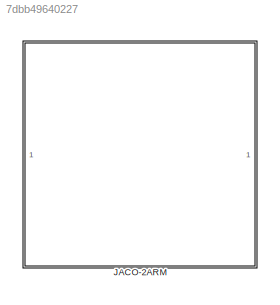
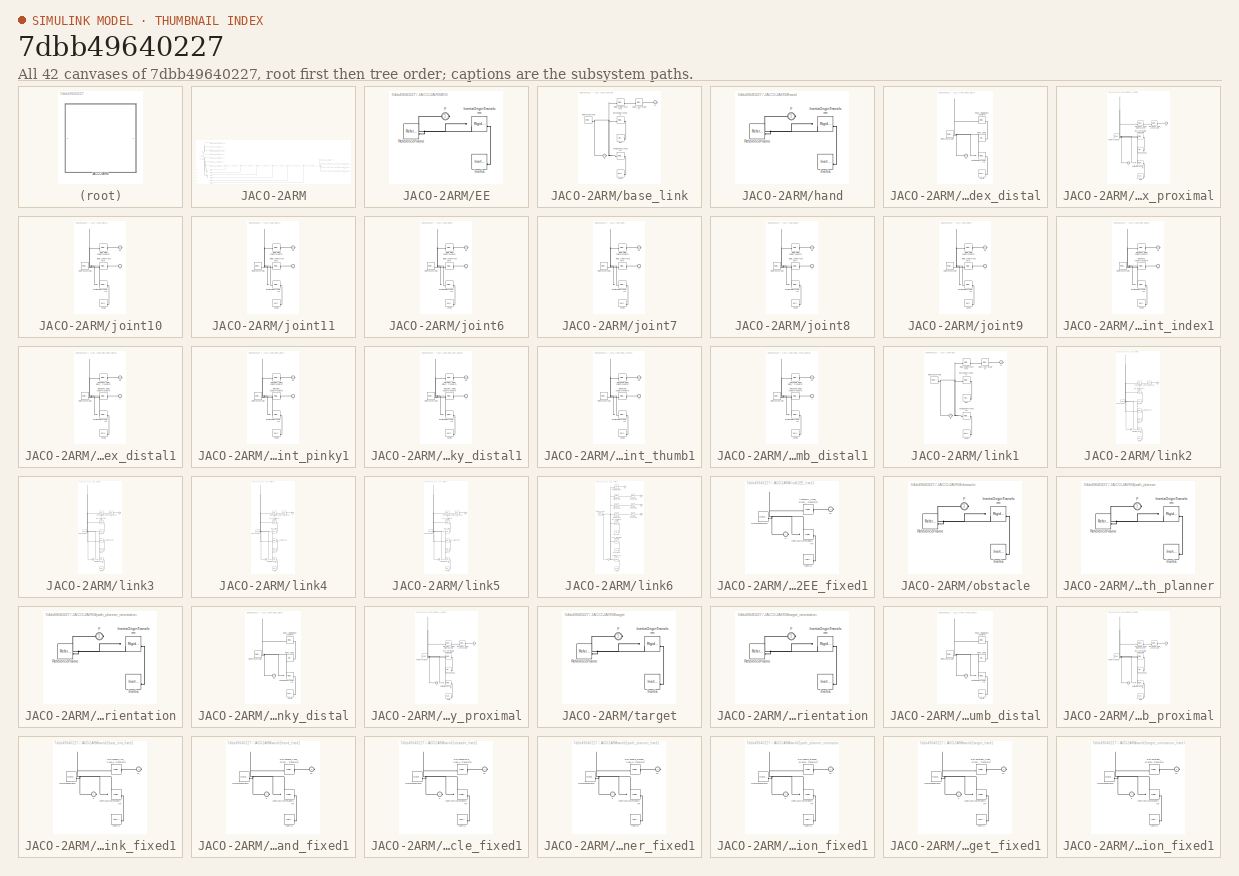
[diagram: thumbnail index - all 42 canvases of the model, root first then tree order]
MODEL slx_7dbb49640227
KIND model
CONFIG AbsTol = auto
CONFIG EnableMultiTasking = off
CONFIG FixedStep = auto
CONFIG MaxStep = auto
CONFIG MinStep = auto
CONFIG RelTol = 1e-3
CONFIG SampleTimeConstraint = Unconstrained
CONFIG SolverName = VariableStepAuto
CONFIG StartTime = 0.0
CONFIG StopTime = 5
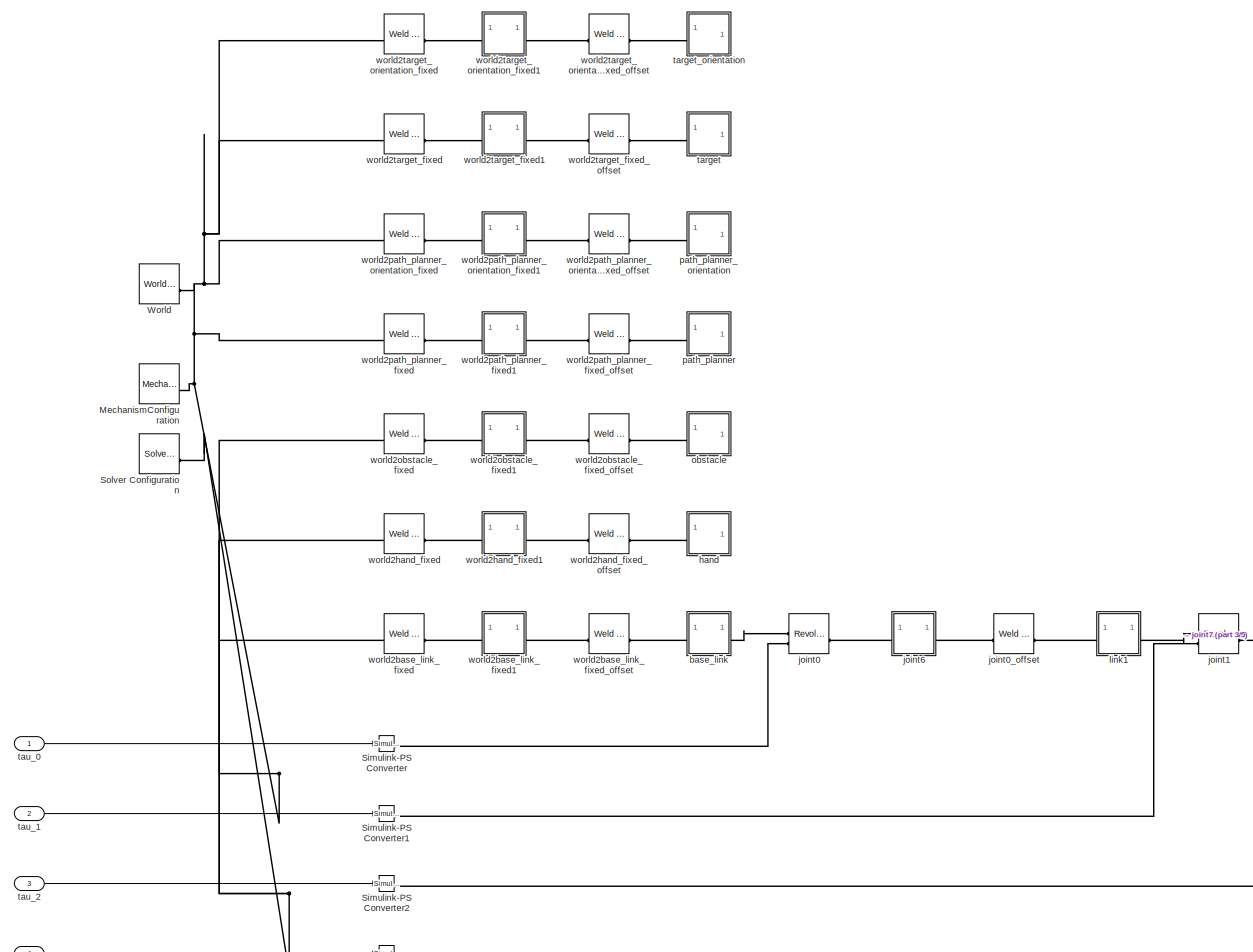
[diagram: JACO-2ARM - part 1/5, left side, full height]
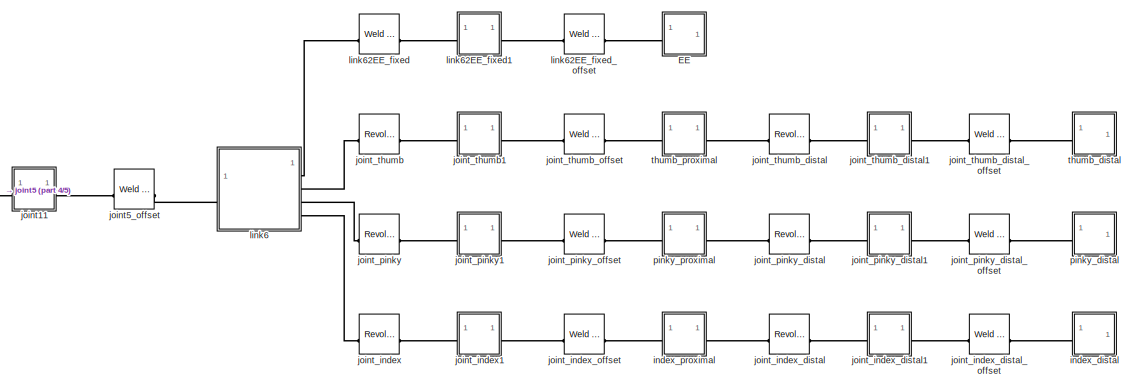
[diagram: JACO-2ARM - part 2/5, middle right region]
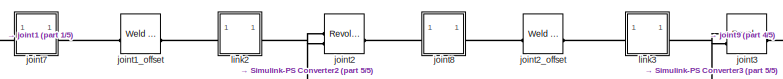
[diagram: JACO-2ARM - part 3/5, central region]
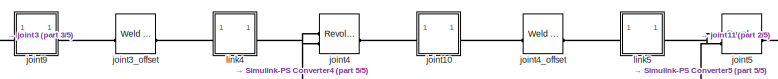
[diagram: JACO-2ARM - part 4/5, central region]
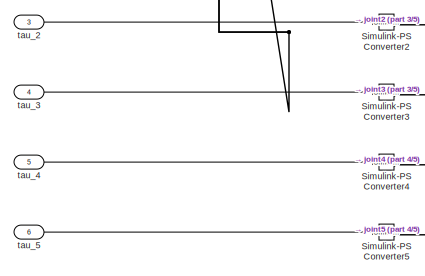
[diagram: JACO-2ARM - part 5/5, bottom left region]
BLOCK [SubSystem] JACO-2ARM
BLOCK [SubSystem] JACO-2ARM/EE
BLOCK [PMIOPort] JACO-2ARM/EE/F
  Side = Left
BLOCK [Reference] JACO-2ARM/EE/Inertia  REF=sm_lib/Body Elements/Inertia
  SourceBlock = sm_lib/Body Elements/Inertia
  SourceType = Inertia
BLOCK [Reference] JACO-2ARM/EE/InertiaOriginTransform  REF=sm_lib/Frames and
Transforms/Rigid
Transform
  SourceBlock = sm_lib/Frames and\nTransforms/Rigid\nTransform
  SourceType = Rigid\nTransform
BLOCK [Reference] JACO-2ARM/EE/ReferenceFrame  REF=sm_lib/Frames and
Transforms/Reference
Frame
  SourceBlock = sm_lib/Frames and\nTransforms/Reference\nFrame
  SourceType = Reference\nFrame
BLOCK [Reference] JACO-2ARM/MechanismConfiguration  REF=sm_lib/Utilities/Mechanism
Configuration
  SourceBlock = sm_lib/Utilities/Mechanism\nConfiguration
  SourceType = Mechanism\nConfiguration
BLOCK [Reference] JACO-2ARM/Simulink-PS Converter  REF=nesl_utility/Simulink-PS
Converter
  SourceBlock = nesl_utility/Simulink-PS\nConverter
  SourceType = Simulink-PS\nConverter
BLOCK [Reference] JACO-2ARM/Simulink-PS Converter1  REF=nesl_utility/Simulink-PS
Converter
  SourceBlock = nesl_utility/Simulink-PS\nConverter
  SourceType = Simulink-PS\nConverter
BLOCK [Reference] JACO-2ARM/Simulink-PS Converter2  REF=nesl_utility/Simulink-PS
Converter
  SourceBlock = nesl_utility/Simulink-PS\nConverter
  SourceType = Simulink-PS\nConverter
BLOCK [Reference] JACO-2ARM/Simulink-PS Converter3  REF=nesl_utility/Simulink-PS
Converter
  SourceBlock = nesl_utility/Simulink-PS\nConverter
  SourceType = Simulink-PS\nConverter
BLOCK [Reference] JACO-2ARM/Simulink-PS Converter4  REF=nesl_utility/Simulink-PS
Converter
  SourceBlock = nesl_utility/Simulink-PS\nConverter
  SourceType = Simulink-PS\nConverter
BLOCK [Reference] JACO-2ARM/Simulink-PS Converter5  REF=nesl_utility/Simulink-PS
Converter
  SourceBlock = nesl_utility/Simulink-PS\nConverter
  SourceType = Simulink-PS\nConverter
BLOCK [Reference] JACO-2ARM/Solver Configuration  REF=nesl_utility/Solver
Configuration
  SourceBlock = nesl_utility/Solver\nConfiguration
  SourceType = Solver\nConfiguration
BLOCK [Reference] JACO-2ARM/World  REF=sm_lib/Frames and
Transforms/World Frame
  SourceBlock = sm_lib/Frames and\nTransforms/World Frame
  SourceType = World Frame
BLOCK [SubSystem] JACO-2ARM/base_link
BLOCK [PMIOPort] JACO-2ARM/base_link/F
  Side = Left
BLOCK [PMIOPort] JACO-2ARM/base_link/F1
  Port = 2
  Side = Right
BLOCK [Reference] JACO-2ARM/base_link/Inertia  REF=sm_lib/Body Elements/Inertia
  SourceBlock = sm_lib/Body Elements/Inertia
  SourceType = Inertia
BLOCK [Reference] JACO-2ARM/base_link/InertiaOriginTransform  REF=sm_lib/Frames and
Transforms/Rigid
Transform
  SourceBlock = sm_lib/Frames and\nTransforms/Rigid\nTransform
  SourceType = Rigid\nTransform
BLOCK [Reference] JACO-2ARM/base_link/ReferenceFrame  REF=sm_lib/Frames and
Transforms/Reference
Frame
  SourceBlock = sm_lib/Frames and\nTransforms/Reference\nFrame
  SourceType = Reference\nFrame
BLOCK [Reference] JACO-2ARM/base_link/joint0_AxisTransform  REF=sm_lib/Frames and
Transforms/Rigid
Transform
  SourceBlock = sm_lib/Frames and\nTransforms/Rigid\nTransform
  SourceType = Rigid\nTransform
BLOCK [Reference] JACO-2ARM/base_link/joint0_OriginTransform  REF=sm_lib/Frames and
Transforms/Rigid
Transform
  SourceBlock = sm_lib/Frames and\nTransforms/Rigid\nTransform
  SourceType = Rigid\nTransform
BLOCK [Reference] JACO-2ARM/base_link/link0  REF=sm_lib/Body Elements/File Solid
  SourceBlock = sm_lib/Body Elements/File Solid
  SourceType = File Solid
BLOCK [Reference] JACO-2ARM/base_link/link0OriginTransform  REF=sm_lib/Frames and
Transforms/Rigid
Transform
  SourceBlock = sm_lib/Frames and\nTransforms/Rigid\nTransform
  SourceType = Rigid\nTransform
BLOCK [SubSystem] JACO-2ARM/hand
BLOCK [PMIOPort] JACO-2ARM/hand/F
  Side = Left
BLOCK [Reference] JACO-2ARM/hand/Inertia  REF=sm_lib/Body Elements/Inertia
  SourceBlock = sm_lib/Body Elements/Inertia
  SourceType = Inertia
BLOCK [Reference] JACO-2ARM/hand/InertiaOriginTransform  REF=sm_lib/Frames and
Transforms/Rigid
Transform
  SourceBlock = sm_lib/Frames and\nTransforms/Rigid\nTransform
  SourceType = Rigid\nTransform
BLOCK [Reference] JACO-2ARM/hand/ReferenceFrame  REF=sm_lib/Frames and
Transforms/Reference
Frame
  SourceBlock = sm_lib/Frames and\nTransforms/Reference\nFrame
  SourceType = Reference\nFrame
BLOCK [SubSystem] JACO-2ARM/index_distal
BLOCK [PMIOPort] JACO-2ARM/index_distal/F
  Side = Left
BLOCK [Reference] JACO-2ARM/index_distal/Inertia  REF=sm_lib/Body Elements/Inertia
  SourceBlock = sm_lib/Body Elements/Inertia
  SourceType = Inertia
BLOCK [Reference] JACO-2ARM/index_distal/InertiaOriginTransform  REF=sm_lib/Frames and
Transforms/Rigid
Transform
  SourceBlock = sm_lib/Frames and\nTransforms/Rigid\nTransform
  SourceType = Rigid\nTransform
BLOCK [Reference] JACO-2ARM/index_distal/ReferenceFrame  REF=sm_lib/Frames and
Transforms/Reference
Frame
  SourceBlock = sm_lib/Frames and\nTransforms/Reference\nFrame
  SourceType = Reference\nFrame
BLOCK [Reference] JACO-2ARM/index_distal/finger_distal  REF=sm_lib/Body Elements/File Solid
  SourceBlock = sm_lib/Body Elements/File Solid
  SourceType = File Solid
BLOCK [Reference] JACO-2ARM/index_distal/finger_distalOriginTransform  REF=sm_lib/Frames and
Transforms/Rigid
Transform
  SourceBlock = sm_lib/Frames and\nTransforms/Rigid\nTransform
  SourceType = Rigid\nTransform
BLOCK [SubSystem] JACO-2ARM/index_proximal
BLOCK [PMIOPort] JACO-2ARM/index_proximal/F
  Side = Left
BLOCK [PMIOPort] JACO-2ARM/index_proximal/F1
  Port = 2
  Side = Right
BLOCK [Reference] JACO-2ARM/index_proximal/Inertia  REF=sm_lib/Body Elements/Inertia
  SourceBlock = sm_lib/Body Elements/Inertia
  SourceType = Inertia
BLOCK [Reference] JACO-2ARM/index_proximal/InertiaOriginTransform  REF=sm_lib/Frames and
Transforms/Rigid
Transform
  SourceBlock = sm_lib/Frames and\nTransforms/Rigid\nTransform
  SourceType = Rigid\nTransform
BLOCK [Reference] JACO-2ARM/index_proximal/ReferenceFrame  REF=sm_lib/Frames and
Transforms/Reference
Frame
  SourceBlock = sm_lib/Frames and\nTransforms/Reference\nFrame
  SourceType = Reference\nFrame
BLOCK [Reference] JACO-2ARM/index_proximal/finger_proximal  REF=sm_lib/Body Elements/File Solid
  SourceBlock = sm_lib/Body Elements/File Solid
  SourceType = File Solid
BLOCK [Reference] JACO-2ARM/index_proximal/finger_proximalOriginTransform  REF=sm_lib/Frames and
Transforms/Rigid
Transform
  SourceBlock = sm_lib/Frames and\nTransforms/Rigid\nTransform
  SourceType = Rigid\nTransform
BLOCK [Reference] JACO-2ARM/index_proximal/joint_index_distal_AxisTransform  REF=sm_lib/Frames and
Transforms/Rigid
Transform
  SourceBlock = sm_lib/Frames and\nTransforms/Rigid\nTransform
  SourceType = Rigid\nTransform
BLOCK [Reference] JACO-2ARM/index_proximal/joint_index_distal_OriginTransform  REF=sm_lib/Frames and
Transforms/Rigid
Transform
  SourceBlock = sm_lib/Frames and\nTransforms/Rigid\nTransform
  SourceType = Rigid\nTransform
BLOCK [Reference] JACO-2ARM/joint0  REF=sm_lib/Joints/Revolute Joint
  SourceBlock = sm_lib/Joints/Revolute Joint
  SourceType = Revolute Joint
BLOCK [Reference] JACO-2ARM/joint0_offset  REF=sm_lib/Joints/Weld Joint
  SourceBlock = sm_lib/Joints/Weld Joint
  SourceType = Weld Joint
BLOCK [Reference] JACO-2ARM/joint1  REF=sm_lib/Joints/Revolute Joint
  SourceBlock = sm_lib/Joints/Revolute Joint
  SourceType = Revolute Joint
BLOCK [SubSystem] JACO-2ARM/joint10
BLOCK [PMIOPort] JACO-2ARM/joint10/F
  Side = Left
BLOCK [PMIOPort] JACO-2ARM/joint10/F1
  Port = 2
  Side = Right
BLOCK [Reference] JACO-2ARM/joint10/Inertia  REF=sm_lib/Body Elements/Inertia
  SourceBlock = sm_lib/Body Elements/Inertia
  SourceType = Inertia
BLOCK [Reference] JACO-2ARM/joint10/InertiaOriginTransform  REF=sm_lib/Frames and
Transforms/Rigid
Transform
  SourceBlock = sm_lib/Frames and\nTransforms/Rigid\nTransform
  SourceType = Rigid\nTransform
BLOCK [Reference] JACO-2ARM/joint10/ReferenceFrame  REF=sm_lib/Frames and
Transforms/Reference
Frame
  SourceBlock = sm_lib/Frames and\nTransforms/Reference\nFrame
  SourceType = Reference\nFrame
BLOCK [Reference] JACO-2ARM/joint10/joint4_AxisInvTransform  REF=sm_lib/Frames and
Transforms/Rigid
Transform
  SourceBlock = sm_lib/Frames and\nTransforms/Rigid\nTransform
  SourceType = Rigid\nTransform
BLOCK [Reference] JACO-2ARM/joint10/joint4_offset_OriginTransform  REF=sm_lib/Frames and
Transforms/Rigid
Transform
  SourceBlock = sm_lib/Frames and\nTransforms/Rigid\nTransform
  SourceType = Rigid\nTransform
BLOCK [SubSystem] JACO-2ARM/joint11
BLOCK [PMIOPort] JACO-2ARM/joint11/F
  Side = Left
BLOCK [PMIOPort] JACO-2ARM/joint11/F1
  Port = 2
  Side = Right
BLOCK [Reference] JACO-2ARM/joint11/Inertia  REF=sm_lib/Body Elements/Inertia
  SourceBlock = sm_lib/Body Elements/Inertia
  SourceType = Inertia
BLOCK [Reference] JACO-2ARM/joint11/InertiaOriginTransform  REF=sm_lib/Frames and
Transforms/Rigid
Transform
  SourceBlock = sm_lib/Frames and\nTransforms/Rigid\nTransform
  SourceType = Rigid\nTransform
BLOCK [Reference] JACO-2ARM/joint11/ReferenceFrame  REF=sm_lib/Frames and
Transforms/Reference
Frame
  SourceBlock = sm_lib/Frames and\nTransforms/Reference\nFrame
  SourceType = Reference\nFrame
BLOCK [Reference] JACO-2ARM/joint11/joint5_AxisInvTransform  REF=sm_lib/Frames and
Transforms/Rigid
Transform
  SourceBlock = sm_lib/Frames and\nTransforms/Rigid\nTransform
  SourceType = Rigid\nTransform
BLOCK [Reference] JACO-2ARM/joint11/joint5_offset_OriginTransform  REF=sm_lib/Frames and
Transforms/Rigid
Transform
  SourceBlock = sm_lib/Frames and\nTransforms/Rigid\nTransform
  SourceType = Rigid\nTransform
BLOCK [Reference] JACO-2ARM/joint1_offset  REF=sm_lib/Joints/Weld Joint
  SourceBlock = sm_lib/Joints/Weld Joint
  SourceType = Weld Joint
BLOCK [Reference] JACO-2ARM/joint2  REF=sm_lib/Joints/Revolute Joint
  SourceBlock = sm_lib/Joints/Revolute Joint
  SourceType = Revolute Joint
BLOCK [Reference] JACO-2ARM/joint2_offset  REF=sm_lib/Joints/Weld Joint
  SourceBlock = sm_lib/Joints/Weld Joint
  SourceType = Weld Joint
BLOCK [Reference] JACO-2ARM/joint3  REF=sm_lib/Joints/Revolute Joint
  SourceBlock = sm_lib/Joints/Revolute Joint
  SourceType = Revolute Joint
BLOCK [Reference] JACO-2ARM/joint3_offset  REF=sm_lib/Joints/Weld Joint
  SourceBlock = sm_lib/Joints/Weld Joint
  SourceType = Weld Joint
BLOCK [Reference] JACO-2ARM/joint4  REF=sm_lib/Joints/Revolute Joint
  SourceBlock = sm_lib/Joints/Revolute Joint
  SourceType = Revolute Joint
BLOCK [Reference] JACO-2ARM/joint4_offset  REF=sm_lib/Joints/Weld Joint
  SourceBlock = sm_lib/Joints/Weld Joint
  SourceType = Weld Joint
BLOCK [Reference] JACO-2ARM/joint5  REF=sm_lib/Joints/Revolute Joint
  SourceBlock = sm_lib/Joints/Revolute Joint
  SourceType = Revolute Joint
BLOCK [Reference] JACO-2ARM/joint5_offset  REF=sm_lib/Joints/Weld Joint
  SourceBlock = sm_lib/Joints/Weld Joint
  SourceType = Weld Joint
BLOCK [SubSystem] JACO-2ARM/joint6
BLOCK [PMIOPort] JACO-2ARM/joint6/F
  Side = Left
BLOCK [PMIOPort] JACO-2ARM/joint6/F1
  Port = 2
  Side = Right
BLOCK [Reference] JACO-2ARM/joint6/Inertia  REF=sm_lib/Body Elements/Inertia
  SourceBlock = sm_lib/Body Elements/Inertia
  SourceType = Inertia
BLOCK [Reference] JACO-2ARM/joint6/InertiaOriginTransform  REF=sm_lib/Frames and
Transforms/Rigid
Transform
  SourceBlock = sm_lib/Frames and\nTransforms/Rigid\nTransform
  SourceType = Rigid\nTransform
BLOCK [Reference] JACO-2ARM/joint6/ReferenceFrame  REF=sm_lib/Frames and
Transforms/Reference
Frame
  SourceBlock = sm_lib/Frames and\nTransforms/Reference\nFrame
  SourceType = Reference\nFrame
BLOCK [Reference] JACO-2ARM/joint6/joint0_AxisInvTransform  REF=sm_lib/Frames and
Transforms/Rigid
Transform
  SourceBlock = sm_lib/Frames and\nTransforms/Rigid\nTransform
  SourceType = Rigid\nTransform
BLOCK [Reference] JACO-2ARM/joint6/joint0_offset_OriginTransform  REF=sm_lib/Frames and
Transforms/Rigid
Transform
  SourceBlock = sm_lib/Frames and\nTransforms/Rigid\nTransform
  SourceType = Rigid\nTransform
BLOCK [SubSystem] JACO-2ARM/joint7
BLOCK [PMIOPort] JACO-2ARM/joint7/F
  Side = Left
BLOCK [PMIOPort] JACO-2ARM/joint7/F1
  Port = 2
  Side = Right
BLOCK [Reference] JACO-2ARM/joint7/Inertia  REF=sm_lib/Body Elements/Inertia
  SourceBlock = sm_lib/Body Elements/Inertia
  SourceType = Inertia
BLOCK [Reference] JACO-2ARM/joint7/InertiaOriginTransform  REF=sm_lib/Frames and
Transforms/Rigid
Transform
  SourceBlock = sm_lib/Frames and\nTransforms/Rigid\nTransform
  SourceType = Rigid\nTransform
BLOCK [Reference] JACO-2ARM/joint7/ReferenceFrame  REF=sm_lib/Frames and
Transforms/Reference
Frame
  SourceBlock = sm_lib/Frames and\nTransforms/Reference\nFrame
  SourceType = Reference\nFrame
BLOCK [Reference] JACO-2ARM/joint7/joint1_AxisInvTransform  REF=sm_lib/Frames and
Transforms/Rigid
Transform
  SourceBlock = sm_lib/Frames and\nTransforms/Rigid\nTransform
  SourceType = Rigid\nTransform
BLOCK [Reference] JACO-2ARM/joint7/joint1_offset_OriginTransform  REF=sm_lib/Frames and
Transforms/Rigid
Transform
  SourceBlock = sm_lib/Frames and\nTransforms/Rigid\nTransform
  SourceType = Rigid\nTransform
BLOCK [SubSystem] JACO-2ARM/joint8
BLOCK [PMIOPort] JACO-2ARM/joint8/F
  Side = Left
BLOCK [PMIOPort] JACO-2ARM/joint8/F1
  Port = 2
  Side = Right
BLOCK [Reference] JACO-2ARM/joint8/Inertia  REF=sm_lib/Body Elements/Inertia
  SourceBlock = sm_lib/Body Elements/Inertia
  SourceType = Inertia
BLOCK [Reference] JACO-2ARM/joint8/InertiaOriginTransform  REF=sm_lib/Frames and
Transforms/Rigid
Transform
  SourceBlock = sm_lib/Frames and\nTransforms/Rigid\nTransform
  SourceType = Rigid\nTransform
BLOCK [Reference] JACO-2ARM/joint8/ReferenceFrame  REF=sm_lib/Frames and
Transforms/Reference
Frame
  SourceBlock = sm_lib/Frames and\nTransforms/Reference\nFrame
  SourceType = Reference\nFrame
BLOCK [Reference] JACO-2ARM/joint8/joint2_AxisInvTransform  REF=sm_lib/Frames and
Transforms/Rigid
Transform
  SourceBlock = sm_lib/Frames and\nTransforms/Rigid\nTransform
  SourceType = Rigid\nTransform
BLOCK [Reference] JACO-2ARM/joint8/joint2_offset_OriginTransform  REF=sm_lib/Frames and
Transforms/Rigid
Transform
  SourceBlock = sm_lib/Frames and\nTransforms/Rigid\nTransform
  SourceType = Rigid\nTransform
BLOCK [SubSystem] JACO-2ARM/joint9
BLOCK [PMIOPort] JACO-2ARM/joint9/F
  Side = Left
BLOCK [PMIOPort] JACO-2ARM/joint9/F1
  Port = 2
  Side = Right
BLOCK [Reference] JACO-2ARM/joint9/Inertia  REF=sm_lib/Body Elements/Inertia
  SourceBlock = sm_lib/Body Elements/Inertia
  SourceType = Inertia
BLOCK [Reference] JACO-2ARM/joint9/InertiaOriginTransform  REF=sm_lib/Frames and
Transforms/Rigid
Transform
  SourceBlock = sm_lib/Frames and\nTransforms/Rigid\nTransform
  SourceType = Rigid\nTransform
BLOCK [Reference] JACO-2ARM/joint9/ReferenceFrame  REF=sm_lib/Frames and
Transforms/Reference
Frame
  SourceBlock = sm_lib/Frames and\nTransforms/Reference\nFrame
  SourceType = Reference\nFrame
BLOCK [Reference] JACO-2ARM/joint9/joint3_AxisInvTransform  REF=sm_lib/Frames and
Transforms/Rigid
Transform
  SourceBlock = sm_lib/Frames and\nTransforms/Rigid\nTransform
  SourceType = Rigid\nTransform
BLOCK [Reference] JACO-2ARM/joint9/joint3_offset_OriginTransform  REF=sm_lib/Frames and
Transforms/Rigid
Transform
  SourceBlock = sm_lib/Frames and\nTransforms/Rigid\nTransform
  SourceType = Rigid\nTransform
BLOCK [Reference] JACO-2ARM/joint_index  REF=sm_lib/Joints/Revolute Joint
  SourceBlock = sm_lib/Joints/Revolute Joint
  SourceType = Revolute Joint
BLOCK [SubSystem] JACO-2ARM/joint_index1
BLOCK [PMIOPort] JACO-2ARM/joint_index1/F
  Side = Left
BLOCK [PMIOPort] JACO-2ARM/joint_index1/F1
  Port = 2
  Side = Right
BLOCK [Reference] JACO-2ARM/joint_index1/Inertia  REF=sm_lib/Body Elements/Inertia
  SourceBlock = sm_lib/Body Elements/Inertia
  SourceType = Inertia
BLOCK [Reference] JACO-2ARM/joint_index1/InertiaOriginTransform  REF=sm_lib/Frames and
Transforms/Rigid
Transform
  SourceBlock = sm_lib/Frames and\nTransforms/Rigid\nTransform
  SourceType = Rigid\nTransform
BLOCK [Reference] JACO-2ARM/joint_index1/ReferenceFrame  REF=sm_lib/Frames and
Transforms/Reference
Frame
  SourceBlock = sm_lib/Frames and\nTransforms/Reference\nFrame
  SourceType = Reference\nFrame
BLOCK [Reference] JACO-2ARM/joint_index1/joint_index_AxisInvTransform  REF=sm_lib/Frames and
Transforms/Rigid
Transform
  SourceBlock = sm_lib/Frames and\nTransforms/Rigid\nTransform
  SourceType = Rigid\nTransform
BLOCK [Reference] JACO-2ARM/joint_index1/joint_index_offset_OriginTransform  REF=sm_lib/Frames and
Transforms/Rigid
Transform
  SourceBlock = sm_lib/Frames and\nTransforms/Rigid\nTransform
  SourceType = Rigid\nTransform
BLOCK [Reference] JACO-2ARM/joint_index_distal  REF=sm_lib/Joints/Revolute Joint
  SourceBlock = sm_lib/Joints/Revolute Joint
  SourceType = Revolute Joint
BLOCK [SubSystem] JACO-2ARM/joint_index_distal1
BLOCK [PMIOPort] JACO-2ARM/joint_index_distal1/F
  Side = Left
BLOCK [PMIOPort] JACO-2ARM/joint_index_distal1/F1
  Port = 2
  Side = Right
BLOCK [Reference] JACO-2ARM/joint_index_distal1/Inertia  REF=sm_lib/Body Elements/Inertia
  SourceBlock = sm_lib/Body Elements/Inertia
  SourceType = Inertia
BLOCK [Reference] JACO-2ARM/joint_index_distal1/InertiaOriginTransform  REF=sm_lib/Frames and
Transforms/Rigid
Transform
  SourceBlock = sm_lib/Frames and\nTransforms/Rigid\nTransform
  SourceType = Rigid\nTransform
BLOCK [Reference] JACO-2ARM/joint_index_distal1/ReferenceFrame  REF=sm_lib/Frames and
Transforms/Reference
Frame
  SourceBlock = sm_lib/Frames and\nTransforms/Reference\nFrame
  SourceType = Reference\nFrame
BLOCK [Reference] JACO-2ARM/joint_index_distal1/joint_index_distal_AxisInvTransform  REF=sm_lib/Frames and
Transforms/Rigid
Transform
  SourceBlock = sm_lib/Frames and\nTransforms/Rigid\nTransform
  SourceType = Rigid\nTransform
BLOCK [Reference] JACO-2ARM/joint_index_distal1/joint_index_distal_offset_OriginTransform  REF=sm_lib/Frames and
Transforms/Rigid
Transform
  SourceBlock = sm_lib/Frames and\nTransforms/Rigid\nTransform
  SourceType = Rigid\nTransform
BLOCK [Reference] JACO-2ARM/joint_index_distal_offset  REF=sm_lib/Joints/Weld Joint
  SourceBlock = sm_lib/Joints/Weld Joint
  SourceType = Weld Joint
BLOCK [Reference] JACO-2ARM/joint_index_offset  REF=sm_lib/Joints/Weld Joint
  SourceBlock = sm_lib/Joints/Weld Joint
  SourceType = Weld Joint
BLOCK [Reference] JACO-2ARM/joint_pinky  REF=sm_lib/Joints/Revolute Joint
  SourceBlock = sm_lib/Joints/Revolute Joint
  SourceType = Revolute Joint
BLOCK [SubSystem] JACO-2ARM/joint_pinky1
BLOCK [PMIOPort] JACO-2ARM/joint_pinky1/F
  Side = Left
BLOCK [PMIOPort] JACO-2ARM/joint_pinky1/F1
  Port = 2
  Side = Right
BLOCK [Reference] JACO-2ARM/joint_pinky1/Inertia  REF=sm_lib/Body Elements/Inertia
  SourceBlock = sm_lib/Body Elements/Inertia
  SourceType = Inertia
BLOCK [Reference] JACO-2ARM/joint_pinky1/InertiaOriginTransform  REF=sm_lib/Frames and
Transforms/Rigid
Transform
  SourceBlock = sm_lib/Frames and\nTransforms/Rigid\nTransform
  SourceType = Rigid\nTransform
BLOCK [Reference] JACO-2ARM/joint_pinky1/ReferenceFrame  REF=sm_lib/Frames and
Transforms/Reference
Frame
  SourceBlock = sm_lib/Frames and\nTransforms/Reference\nFrame
  SourceType = Reference\nFrame
BLOCK [Reference] JACO-2ARM/joint_pinky1/joint_pinky_AxisInvTransform  REF=sm_lib/Frames and
Transforms/Rigid
Transform
  SourceBlock = sm_lib/Frames and\nTransforms/Rigid\nTransform
  SourceType = Rigid\nTransform
BLOCK [Reference] JACO-2ARM/joint_pinky1/joint_pinky_offset_OriginTransform  REF=sm_lib/Frames and
Transforms/Rigid
Transform
  SourceBlock = sm_lib/Frames and\nTransforms/Rigid\nTransform
  SourceType = Rigid\nTransform
BLOCK [Reference] JACO-2ARM/joint_pinky_distal  REF=sm_lib/Joints/Revolute Joint
  SourceBlock = sm_lib/Joints/Revolute Joint
  SourceType = Revolute Joint
BLOCK [SubSystem] JACO-2ARM/joint_pinky_distal1
BLOCK [PMIOPort] JACO-2ARM/joint_pinky_distal1/F
  Side = Left
BLOCK [PMIOPort] JACO-2ARM/joint_pinky_distal1/F1
  Port = 2
  Side = Right
BLOCK [Reference] JACO-2ARM/joint_pinky_distal1/Inertia  REF=sm_lib/Body Elements/Inertia
  SourceBlock = sm_lib/Body Elements/Inertia
  SourceType = Inertia
BLOCK [Reference] JACO-2ARM/joint_pinky_distal1/InertiaOriginTransform  REF=sm_lib/Frames and
Transforms/Rigid
Transform
  SourceBlock = sm_lib/Frames and\nTransforms/Rigid\nTransform
  SourceType = Rigid\nTransform
BLOCK [Reference] JACO-2ARM/joint_pinky_distal1/ReferenceFrame  REF=sm_lib/Frames and
Transforms/Reference
Frame
  SourceBlock = sm_lib/Frames and\nTransforms/Reference\nFrame
  SourceType = Reference\nFrame
BLOCK [Reference] JACO-2ARM/joint_pinky_distal1/joint_pinky_distal_AxisInvTransform  REF=sm_lib/Frames and
Transforms/Rigid
Transform
  SourceBlock = sm_lib/Frames and\nTransforms/Rigid\nTransform
  SourceType = Rigid\nTransform
BLOCK [Reference] JACO-2ARM/joint_pinky_distal1/joint_pinky_distal_offset_OriginTransform  REF=sm_lib/Frames and
Transforms/Rigid
Transform
  SourceBlock = sm_lib/Frames and\nTransforms/Rigid\nTransform
  SourceType = Rigid\nTransform
BLOCK [Reference] JACO-2ARM/joint_pinky_distal_offset  REF=sm_lib/Joints/Weld Joint
  SourceBlock = sm_lib/Joints/Weld Joint
  SourceType = Weld Joint
BLOCK [Reference] JACO-2ARM/joint_pinky_offset  REF=sm_lib/Joints/Weld Joint
  SourceBlock = sm_lib/Joints/Weld Joint
  SourceType = Weld Joint
BLOCK [Reference] JACO-2ARM/joint_thumb  REF=sm_lib/Joints/Revolute Joint
  SourceBlock = sm_lib/Joints/Revolute Joint
  SourceType = Revolute Joint
BLOCK [SubSystem] JACO-2ARM/joint_thumb1
BLOCK [PMIOPort] JACO-2ARM/joint_thumb1/F
  Side = Left
BLOCK [PMIOPort] JACO-2ARM/joint_thumb1/F1
  Port = 2
  Side = Right
BLOCK [Reference] JACO-2ARM/joint_thumb1/Inertia  REF=sm_lib/Body Elements/Inertia
  SourceBlock = sm_lib/Body Elements/Inertia
  SourceType = Inertia
BLOCK [Reference] JACO-2ARM/joint_thumb1/InertiaOriginTransform  REF=sm_lib/Frames and
Transforms/Rigid
Transform
  SourceBlock = sm_lib/Frames and\nTransforms/Rigid\nTransform
  SourceType = Rigid\nTransform
BLOCK [Reference] JACO-2ARM/joint_thumb1/ReferenceFrame  REF=sm_lib/Frames and
Transforms/Reference
Frame
  SourceBlock = sm_lib/Frames and\nTransforms/Reference\nFrame
  SourceType = Reference\nFrame
BLOCK [Reference] JACO-2ARM/joint_thumb1/joint_thumb_AxisInvTransform  REF=sm_lib/Frames and
Transforms/Rigid
Transform
  SourceBlock = sm_lib/Frames and\nTransforms/Rigid\nTransform
  SourceType = Rigid\nTransform
BLOCK [Reference] JACO-2ARM/joint_thumb1/joint_thumb_offset_OriginTransform  REF=sm_lib/Frames and
Transforms/Rigid
Transform
  SourceBlock = sm_lib/Frames and\nTransforms/Rigid\nTransform
  SourceType = Rigid\nTransform
BLOCK [Reference] JACO-2ARM/joint_thumb_distal  REF=sm_lib/Joints/Revolute Joint
  SourceBlock = sm_lib/Joints/Revolute Joint
  SourceType = Revolute Joint
BLOCK [SubSystem] JACO-2ARM/joint_thumb_distal1
BLOCK [PMIOPort] JACO-2ARM/joint_thumb_distal1/F
  Side = Left
BLOCK [PMIOPort] JACO-2ARM/joint_thumb_distal1/F1
  Port = 2
  Side = Right
BLOCK [Reference] JACO-2ARM/joint_thumb_distal1/Inertia  REF=sm_lib/Body Elements/Inertia
  SourceBlock = sm_lib/Body Elements/Inertia
  SourceType = Inertia
BLOCK [Reference] JACO-2ARM/joint_thumb_distal1/InertiaOriginTransform  REF=sm_lib/Frames and
Transforms/Rigid
Transform
  SourceBlock = sm_lib/Frames and\nTransforms/Rigid\nTransform
  SourceType = Rigid\nTransform
BLOCK [Reference] JACO-2ARM/joint_thumb_distal1/ReferenceFrame  REF=sm_lib/Frames and
Transforms/Reference
Frame
  SourceBlock = sm_lib/Frames and\nTransforms/Reference\nFrame
  SourceType = Reference\nFrame
BLOCK [Reference] JACO-2ARM/joint_thumb_distal1/joint_thumb_distal_AxisInvTransform  REF=sm_lib/Frames and
Transforms/Rigid
Transform
  SourceBlock = sm_lib/Frames and\nTransforms/Rigid\nTransform
  SourceType = Rigid\nTransform
BLOCK [Reference] JACO-2ARM/joint_thumb_distal1/joint_thumb_distal_offset_OriginTransform  REF=sm_lib/Frames and
Transforms/Rigid
Transform
  SourceBlock = sm_lib/Frames and\nTransforms/Rigid\nTransform
  SourceType = Rigid\nTransform
BLOCK [Reference] JACO-2ARM/joint_thumb_distal_offset  REF=sm_lib/Joints/Weld Joint
  SourceBlock = sm_lib/Joints/Weld Joint
  SourceType = Weld Joint
BLOCK [Reference] JACO-2ARM/joint_thumb_offset  REF=sm_lib/Joints/Weld Joint
  SourceBlock = sm_lib/Joints/Weld Joint
  SourceType = Weld Joint
BLOCK [SubSystem] JACO-2ARM/link1
BLOCK [PMIOPort] JACO-2ARM/link1/F
  Side = Left
BLOCK [PMIOPort] JACO-2ARM/link1/F1
  Port = 2
  Side = Right
BLOCK [Reference] JACO-2ARM/link1/Inertia  REF=sm_lib/Body Elements/Inertia
  SourceBlock = sm_lib/Body Elements/Inertia
  SourceType = Inertia
BLOCK [Reference] JACO-2ARM/link1/InertiaOriginTransform  REF=sm_lib/Frames and
Transforms/Rigid
Transform
  SourceBlock = sm_lib/Frames and\nTransforms/Rigid\nTransform
  SourceType = Rigid\nTransform
BLOCK [Reference] JACO-2ARM/link1/ReferenceFrame  REF=sm_lib/Frames and
Transforms/Reference
Frame
  SourceBlock = sm_lib/Frames and\nTransforms/Reference\nFrame
  SourceType = Reference\nFrame
BLOCK [Reference] JACO-2ARM/link1/joint1_AxisTransform  REF=sm_lib/Frames and
Transforms/Rigid
Transform
  SourceBlock = sm_lib/Frames and\nTransforms/Rigid\nTransform
  SourceType = Rigid\nTransform
BLOCK [Reference] JACO-2ARM/link1/joint1_OriginTransform  REF=sm_lib/Frames and
Transforms/Rigid
Transform
  SourceBlock = sm_lib/Frames and\nTransforms/Rigid\nTransform
  SourceType = Rigid\nTransform
BLOCK [Reference] JACO-2ARM/link1/link1  REF=sm_lib/Body Elements/File Solid
  SourceBlock = sm_lib/Body Elements/File Solid
  SourceType = File Solid
BLOCK [Reference] JACO-2ARM/link1/link1OriginTransform  REF=sm_lib/Frames and
Transforms/Rigid
Transform
  SourceBlock = sm_lib/Frames and\nTransforms/Rigid\nTransform
  SourceType = Rigid\nTransform
BLOCK [SubSystem] JACO-2ARM/link2
BLOCK [PMIOPort] JACO-2ARM/link2/F
  Side = Left
BLOCK [PMIOPort] JACO-2ARM/link2/F1
  Port = 2
  Side = Right
BLOCK [Reference] JACO-2ARM/link2/Inertia  REF=sm_lib/Body Elements/Inertia
  SourceBlock = sm_lib/Body Elements/Inertia
  SourceType = Inertia
BLOCK [Reference] JACO-2ARM/link2/InertiaOriginTransform  REF=sm_lib/Frames and
Transforms/Rigid
Transform
  SourceBlock = sm_lib/Frames and\nTransforms/Rigid\nTransform
  SourceType = Rigid\nTransform
BLOCK [Reference] JACO-2ARM/link2/ReferenceFrame  REF=sm_lib/Frames and
Transforms/Reference
Frame
  SourceBlock = sm_lib/Frames and\nTransforms/Reference\nFrame
  SourceType = Reference\nFrame
BLOCK [Reference] JACO-2ARM/link2/joint2_AxisTransform  REF=sm_lib/Frames and
Transforms/Rigid
Transform
  SourceBlock = sm_lib/Frames and\nTransforms/Rigid\nTransform
  SourceType = Rigid\nTransform
BLOCK [Reference] JACO-2ARM/link2/joint2_OriginTransform  REF=sm_lib/Frames and
Transforms/Rigid
Transform
  SourceBlock = sm_lib/Frames and\nTransforms/Rigid\nTransform
  SourceType = Rigid\nTransform
BLOCK [Reference] JACO-2ARM/link2/link2  REF=sm_lib/Body Elements/File Solid
  SourceBlock = sm_lib/Body Elements/File Solid
  SourceType = File Solid
BLOCK [Reference] JACO-2ARM/link2/link2OriginTransform  REF=sm_lib/Frames and
Transforms/Rigid
Transform
  SourceBlock = sm_lib/Frames and\nTransforms/Rigid\nTransform
  SourceType = Rigid\nTransform
BLOCK [Reference] JACO-2ARM/link2/ring_big  REF=sm_lib/Body Elements/File Solid
  SourceBlock = sm_lib/Body Elements/File Solid
  SourceType = File Solid
BLOCK [Reference] JACO-2ARM/link2/ring_bigOriginTransform  REF=sm_lib/Frames and
Transforms/Rigid
Transform
  SourceBlock = sm_lib/Frames and\nTransforms/Rigid\nTransform
  SourceType = Rigid\nTransform
BLOCK [SubSystem] JACO-2ARM/link3
BLOCK [PMIOPort] JACO-2ARM/link3/F
  Side = Left
BLOCK [PMIOPort] JACO-2ARM/link3/F1
  Port = 2
  Side = Right
BLOCK [Reference] JACO-2ARM/link3/Inertia  REF=sm_lib/Body Elements/Inertia
  SourceBlock = sm_lib/Body Elements/Inertia
  SourceType = Inertia
BLOCK [Reference] JACO-2ARM/link3/InertiaOriginTransform  REF=sm_lib/Frames and
Transforms/Rigid
Transform
  SourceBlock = sm_lib/Frames and\nTransforms/Rigid\nTransform
  SourceType = Rigid\nTransform
BLOCK [Reference] JACO-2ARM/link3/ReferenceFrame  REF=sm_lib/Frames and
Transforms/Reference
Frame
  SourceBlock = sm_lib/Frames and\nTransforms/Reference\nFrame
  SourceType = Reference\nFrame
BLOCK [Reference] JACO-2ARM/link3/joint3_AxisTransform  REF=sm_lib/Frames and
Transforms/Rigid
Transform
  SourceBlock = sm_lib/Frames and\nTransforms/Rigid\nTransform
  SourceType = Rigid\nTransform
BLOCK [Reference] JACO-2ARM/link3/joint3_OriginTransform  REF=sm_lib/Frames and
Transforms/Rigid
Transform
  SourceBlock = sm_lib/Frames and\nTransforms/Rigid\nTransform
  SourceType = Rigid\nTransform
BLOCK [Reference] JACO-2ARM/link3/link3  REF=sm_lib/Body Elements/File Solid
  SourceBlock = sm_lib/Body Elements/File Solid
  SourceType = File Solid
BLOCK [Reference] JACO-2ARM/link3/link3OriginTransform  REF=sm_lib/Frames and
Transforms/Rigid
Transform
  SourceBlock = sm_lib/Frames and\nTransforms/Rigid\nTransform
  SourceType = Rigid\nTransform
BLOCK [Reference] JACO-2ARM/link3/ring_big  REF=sm_lib/Body Elements/File Solid
  SourceBlock = sm_lib/Body Elements/File Solid
  SourceType = File Solid
BLOCK [Reference] JACO-2ARM/link3/ring_bigOriginTransform  REF=sm_lib/Frames and
Transforms/Rigid
Transform
  SourceBlock = sm_lib/Frames and\nTransforms/Rigid\nTransform
  SourceType = Rigid\nTransform
BLOCK [SubSystem] JACO-2ARM/link4
BLOCK [PMIOPort] JACO-2ARM/link4/F
  Side = Left
BLOCK [PMIOPort] JACO-2ARM/link4/F1
  Port = 2
  Side = Right
BLOCK [Reference] JACO-2ARM/link4/Inertia  REF=sm_lib/Body Elements/Inertia
  SourceBlock = sm_lib/Body Elements/Inertia
  SourceType = Inertia
BLOCK [Reference] JACO-2ARM/link4/InertiaOriginTransform  REF=sm_lib/Frames and
Transforms/Rigid
Transform
  SourceBlock = sm_lib/Frames and\nTransforms/Rigid\nTransform
  SourceType = Rigid\nTransform
BLOCK [Reference] JACO-2ARM/link4/ReferenceFrame  REF=sm_lib/Frames and
Transforms/Reference
Frame
  SourceBlock = sm_lib/Frames and\nTransforms/Reference\nFrame
  SourceType = Reference\nFrame
BLOCK [Reference] JACO-2ARM/link4/joint4_AxisTransform  REF=sm_lib/Frames and
Transforms/Rigid
Transform
  SourceBlock = sm_lib/Frames and\nTransforms/Rigid\nTransform
  SourceType = Rigid\nTransform
BLOCK [Reference] JACO-2ARM/link4/joint4_OriginTransform  REF=sm_lib/Frames and
Transforms/Rigid
Transform
  SourceBlock = sm_lib/Frames and\nTransforms/Rigid\nTransform
  SourceType = Rigid\nTransform
BLOCK [Reference] JACO-2ARM/link4/link4_5  REF=sm_lib/Body Elements/File Solid
  SourceBlock = sm_lib/Body Elements/File Solid
  SourceType = File Solid
BLOCK [Reference] JACO-2ARM/link4/link4_5OriginTransform  REF=sm_lib/Frames and
Transforms/Rigid
Transform
  SourceBlock = sm_lib/Frames and\nTransforms/Rigid\nTransform
  SourceType = Rigid\nTransform
BLOCK [Reference] JACO-2ARM/link4/ring_small  REF=sm_lib/Body Elements/File Solid
  SourceBlock = sm_lib/Body Elements/File Solid
  SourceType = File Solid
BLOCK [Reference] JACO-2ARM/link4/ring_smallOriginTransform  REF=sm_lib/Frames and
Transforms/Rigid
Transform
  SourceBlock = sm_lib/Frames and\nTransforms/Rigid\nTransform
  SourceType = Rigid\nTransform
BLOCK [SubSystem] JACO-2ARM/link5
BLOCK [PMIOPort] JACO-2ARM/link5/F
  Side = Left
BLOCK [PMIOPort] JACO-2ARM/link5/F1
  Port = 2
  Side = Right
BLOCK [Reference] JACO-2ARM/link5/Inertia  REF=sm_lib/Body Elements/Inertia
  SourceBlock = sm_lib/Body Elements/Inertia
  SourceType = Inertia
BLOCK [Reference] JACO-2ARM/link5/InertiaOriginTransform  REF=sm_lib/Frames and
Transforms/Rigid
Transform
  SourceBlock = sm_lib/Frames and\nTransforms/Rigid\nTransform
  SourceType = Rigid\nTransform
BLOCK [Reference] JACO-2ARM/link5/ReferenceFrame  REF=sm_lib/Frames and
Transforms/Reference
Frame
  SourceBlock = sm_lib/Frames and\nTransforms/Reference\nFrame
  SourceType = Reference\nFrame
BLOCK [Reference] JACO-2ARM/link5/joint5_AxisTransform  REF=sm_lib/Frames and
Transforms/Rigid
Transform
  SourceBlock = sm_lib/Frames and\nTransforms/Rigid\nTransform
  SourceType = Rigid\nTransform
BLOCK [Reference] JACO-2ARM/link5/joint5_OriginTransform  REF=sm_lib/Frames and
Transforms/Rigid
Transform
  SourceBlock = sm_lib/Frames and\nTransforms/Rigid\nTransform
  SourceType = Rigid\nTransform
BLOCK [Reference] JACO-2ARM/link5/link4_5  REF=sm_lib/Body Elements/File Solid
  SourceBlock = sm_lib/Body Elements/File Solid
  SourceType = File Solid
BLOCK [Reference] JACO-2ARM/link5/link4_5OriginTransform  REF=sm_lib/Frames and
Transforms/Rigid
Transform
  SourceBlock = sm_lib/Frames and\nTransforms/Rigid\nTransform
  SourceType = Rigid\nTransform
BLOCK [Reference] JACO-2ARM/link5/ring_small  REF=sm_lib/Body Elements/File Solid
  SourceBlock = sm_lib/Body Elements/File Solid
  SourceType = File Solid
BLOCK [Reference] JACO-2ARM/link5/ring_smallOriginTransform  REF=sm_lib/Frames and
Transforms/Rigid
Transform
  SourceBlock = sm_lib/Frames and\nTransforms/Rigid\nTransform
  SourceType = Rigid\nTransform
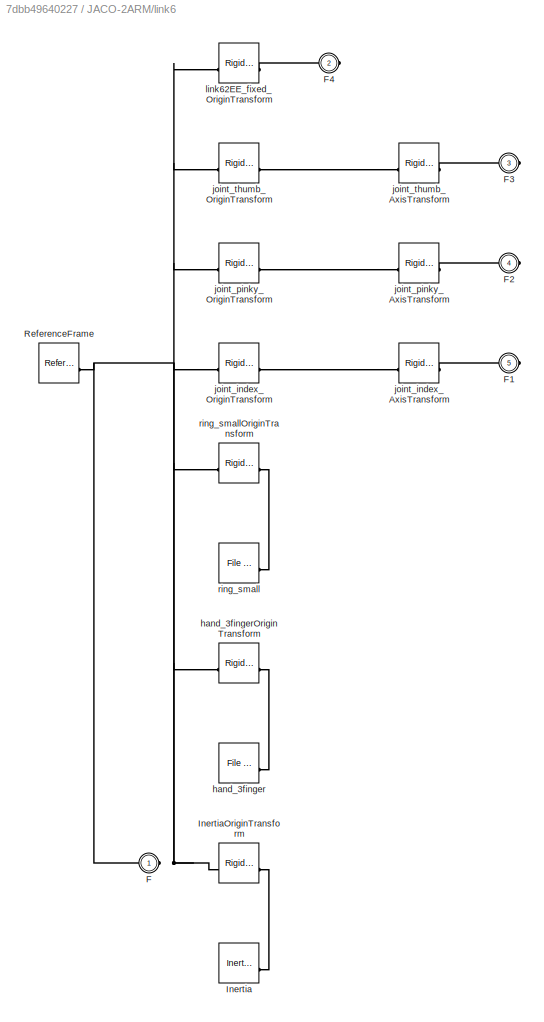
BLOCK [SubSystem] JACO-2ARM/link6
BLOCK [PMIOPort] JACO-2ARM/link6/F
  Side = Left
BLOCK [PMIOPort] JACO-2ARM/link6/F1
  Port = 5
  Side = Right
BLOCK [PMIOPort] JACO-2ARM/link6/F2
  Port = 4
  Side = Right
BLOCK [PMIOPort] JACO-2ARM/link6/F3
  Port = 3
  Side = Right
BLOCK [PMIOPort] JACO-2ARM/link6/F4
  Port = 2
  Side = Right
BLOCK [Reference] JACO-2ARM/link6/Inertia  REF=sm_lib/Body Elements/Inertia
  SourceBlock = sm_lib/Body Elements/Inertia
  SourceType = Inertia
BLOCK [Reference] JACO-2ARM/link6/InertiaOriginTransform  REF=sm_lib/Frames and
Transforms/Rigid
Transform
  SourceBlock = sm_lib/Frames and\nTransforms/Rigid\nTransform
  SourceType = Rigid\nTransform
BLOCK [Reference] JACO-2ARM/link6/ReferenceFrame  REF=sm_lib/Frames and
Transforms/Reference
Frame
  SourceBlock = sm_lib/Frames and\nTransforms/Reference\nFrame
  SourceType = Reference\nFrame
BLOCK [Reference] JACO-2ARM/link6/hand_3finger  REF=sm_lib/Body Elements/File Solid
  SourceBlock = sm_lib/Body Elements/File Solid
  SourceType = File Solid
BLOCK [Reference] JACO-2ARM/link6/hand_3fingerOriginTransform  REF=sm_lib/Frames and
Transforms/Rigid
Transform
  SourceBlock = sm_lib/Frames and\nTransforms/Rigid\nTransform
  SourceType = Rigid\nTransform
BLOCK [Reference] JACO-2ARM/link6/joint_index_AxisTransform  REF=sm_lib/Frames and
Transforms/Rigid
Transform
  SourceBlock = sm_lib/Frames and\nTransforms/Rigid\nTransform
  SourceType = Rigid\nTransform
BLOCK [Reference] JACO-2ARM/link6/joint_index_OriginTransform  REF=sm_lib/Frames and
Transforms/Rigid
Transform
  SourceBlock = sm_lib/Frames and\nTransforms/Rigid\nTransform
  SourceType = Rigid\nTransform
BLOCK [Reference] JACO-2ARM/link6/joint_pinky_AxisTransform  REF=sm_lib/Frames and
Transforms/Rigid
Transform
  SourceBlock = sm_lib/Frames and\nTransforms/Rigid\nTransform
  SourceType = Rigid\nTransform
BLOCK [Reference] JACO-2ARM/link6/joint_pinky_OriginTransform  REF=sm_lib/Frames and
Transforms/Rigid
Transform
  SourceBlock = sm_lib/Frames and\nTransforms/Rigid\nTransform
  SourceType = Rigid\nTransform
BLOCK [Reference] JACO-2ARM/link6/joint_thumb_AxisTransform  REF=sm_lib/Frames and
Transforms/Rigid
Transform
  SourceBlock = sm_lib/Frames and\nTransforms/Rigid\nTransform
  SourceType = Rigid\nTransform
BLOCK [Reference] JACO-2ARM/link6/joint_thumb_OriginTransform  REF=sm_lib/Frames and
Transforms/Rigid
Transform
  SourceBlock = sm_lib/Frames and\nTransforms/Rigid\nTransform
  SourceType = Rigid\nTransform
BLOCK [Reference] JACO-2ARM/link6/link62EE_fixed_OriginTransform  REF=sm_lib/Frames and
Transforms/Rigid
Transform
  SourceBlock = sm_lib/Frames and\nTransforms/Rigid\nTransform
  SourceType = Rigid\nTransform
BLOCK [Reference] JACO-2ARM/link6/ring_small  REF=sm_lib/Body Elements/File Solid
  SourceBlock = sm_lib/Body Elements/File Solid
  SourceType = File Solid
BLOCK [Reference] JACO-2ARM/link6/ring_smallOriginTransform  REF=sm_lib/Frames and
Transforms/Rigid
Transform
  SourceBlock = sm_lib/Frames and\nTransforms/Rigid\nTransform
  SourceType = Rigid\nTransform
BLOCK [Reference] JACO-2ARM/link62EE_fixed  REF=sm_lib/Joints/Weld Joint
  SourceBlock = sm_lib/Joints/Weld Joint
  SourceType = Weld Joint
BLOCK [SubSystem] JACO-2ARM/link62EE_fixed1
BLOCK [PMIOPort] JACO-2ARM/link62EE_fixed1/F
  Side = Left
BLOCK [PMIOPort] JACO-2ARM/link62EE_fixed1/F1
  Port = 2
  Side = Right
BLOCK [Reference] JACO-2ARM/link62EE_fixed1/Inertia  REF=sm_lib/Body Elements/Inertia
  SourceBlock = sm_lib/Body Elements/Inertia
  SourceType = Inertia
BLOCK [Reference] JACO-2ARM/link62EE_fixed1/InertiaOriginTransform  REF=sm_lib/Frames and
Transforms/Rigid
Transform
  SourceBlock = sm_lib/Frames and\nTransforms/Rigid\nTransform
  SourceType = Rigid\nTransform
BLOCK [Reference] JACO-2ARM/link62EE_fixed1/ReferenceFrame  REF=sm_lib/Frames and
Transforms/Reference
Frame
  SourceBlock = sm_lib/Frames and\nTransforms/Reference\nFrame
  SourceType = Reference\nFrame
BLOCK [Reference] JACO-2ARM/link62EE_fixed1/link62EE_fixed_offset_OriginTransform  REF=sm_lib/Frames and
Transforms/Rigid
Transform
  SourceBlock = sm_lib/Frames and\nTransforms/Rigid\nTransform
  SourceType = Rigid\nTransform
BLOCK [Reference] JACO-2ARM/link62EE_fixed_offset  REF=sm_lib/Joints/Weld Joint
  SourceBlock = sm_lib/Joints/Weld Joint
  SourceType = Weld Joint
BLOCK [SubSystem] JACO-2ARM/obstacle
BLOCK [PMIOPort] JACO-2ARM/obstacle/F
  Side = Left
BLOCK [Reference] JACO-2ARM/obstacle/Inertia  REF=sm_lib/Body Elements/Inertia
  SourceBlock = sm_lib/Body Elements/Inertia
  SourceType = Inertia
BLOCK [Reference] JACO-2ARM/obstacle/InertiaOriginTransform  REF=sm_lib/Frames and
Transforms/Rigid
Transform
  SourceBlock = sm_lib/Frames and\nTransforms/Rigid\nTransform
  SourceType = Rigid\nTransform
BLOCK [Reference] JACO-2ARM/obstacle/ReferenceFrame  REF=sm_lib/Frames and
Transforms/Reference
Frame
  SourceBlock = sm_lib/Frames and\nTransforms/Reference\nFrame
  SourceType = Reference\nFrame
BLOCK [SubSystem] JACO-2ARM/path_planner
BLOCK [PMIOPort] JACO-2ARM/path_planner/F
  Side = Left
BLOCK [Reference] JACO-2ARM/path_planner/Inertia  REF=sm_lib/Body Elements/Inertia
  SourceBlock = sm_lib/Body Elements/Inertia
  SourceType = Inertia
BLOCK [Reference] JACO-2ARM/path_planner/InertiaOriginTransform  REF=sm_lib/Frames and
Transforms/Rigid
Transform
  SourceBlock = sm_lib/Frames and\nTransforms/Rigid\nTransform
  SourceType = Rigid\nTransform
BLOCK [Reference] JACO-2ARM/path_planner/ReferenceFrame  REF=sm_lib/Frames and
Transforms/Reference
Frame
  SourceBlock = sm_lib/Frames and\nTransforms/Reference\nFrame
  SourceType = Reference\nFrame
BLOCK [SubSystem] JACO-2ARM/path_planner_orientation
BLOCK [PMIOPort] JACO-2ARM/path_planner_orientation/F
  Side = Left
BLOCK [Reference] JACO-2ARM/path_planner_orientation/Inertia  REF=sm_lib/Body Elements/Inertia
  SourceBlock = sm_lib/Body Elements/Inertia
  SourceType = Inertia
BLOCK [Reference] JACO-2ARM/path_planner_orientation/InertiaOriginTransform  REF=sm_lib/Frames and
Transforms/Rigid
Transform
  SourceBlock = sm_lib/Frames and\nTransforms/Rigid\nTransform
  SourceType = Rigid\nTransform
BLOCK [Reference] JACO-2ARM/path_planner_orientation/ReferenceFrame  REF=sm_lib/Frames and
Transforms/Reference
Frame
  SourceBlock = sm_lib/Frames and\nTransforms/Reference\nFrame
  SourceType = Reference\nFrame
BLOCK [SubSystem] JACO-2ARM/pinky_distal
BLOCK [PMIOPort] JACO-2ARM/pinky_distal/F
  Side = Left
BLOCK [Reference] JACO-2ARM/pinky_distal/Inertia  REF=sm_lib/Body Elements/Inertia
  SourceBlock = sm_lib/Body Elements/Inertia
  SourceType = Inertia
BLOCK [Reference] JACO-2ARM/pinky_distal/InertiaOriginTransform  REF=sm_lib/Frames and
Transforms/Rigid
Transform
  SourceBlock = sm_lib/Frames and\nTransforms/Rigid\nTransform
  SourceType = Rigid\nTransform
BLOCK [Reference] JACO-2ARM/pinky_distal/ReferenceFrame  REF=sm_lib/Frames and
Transforms/Reference
Frame
  SourceBlock = sm_lib/Frames and\nTransforms/Reference\nFrame
  SourceType = Reference\nFrame
BLOCK [Reference] JACO-2ARM/pinky_distal/finger_distal  REF=sm_lib/Body Elements/File Solid
  SourceBlock = sm_lib/Body Elements/File Solid
  SourceType = File Solid
BLOCK [Reference] JACO-2ARM/pinky_distal/finger_distalOriginTransform  REF=sm_lib/Frames and
Transforms/Rigid
Transform
  SourceBlock = sm_lib/Frames and\nTransforms/Rigid\nTransform
  SourceType = Rigid\nTransform
BLOCK [SubSystem] JACO-2ARM/pinky_proximal
BLOCK [PMIOPort] JACO-2ARM/pinky_proximal/F
  Side = Left
BLOCK [PMIOPort] JACO-2ARM/pinky_proximal/F1
  Port = 2
  Side = Right
BLOCK [Reference] JACO-2ARM/pinky_proximal/Inertia  REF=sm_lib/Body Elements/Inertia
  SourceBlock = sm_lib/Body Elements/Inertia
  SourceType = Inertia
BLOCK [Reference] JACO-2ARM/pinky_proximal/InertiaOriginTransform  REF=sm_lib/Frames and
Transforms/Rigid
Transform
  SourceBlock = sm_lib/Frames and\nTransforms/Rigid\nTransform
  SourceType = Rigid\nTransform
BLOCK [Reference] JACO-2ARM/pinky_proximal/ReferenceFrame  REF=sm_lib/Frames and
Transforms/Reference
Frame
  SourceBlock = sm_lib/Frames and\nTransforms/Reference\nFrame
  SourceType = Reference\nFrame
BLOCK [Reference] JACO-2ARM/pinky_proximal/finger_proximal  REF=sm_lib/Body Elements/File Solid
  SourceBlock = sm_lib/Body Elements/File Solid
  SourceType = File Solid
BLOCK [Reference] JACO-2ARM/pinky_proximal/finger_proximalOriginTransform  REF=sm_lib/Frames and
Transforms/Rigid
Transform
  SourceBlock = sm_lib/Frames and\nTransforms/Rigid\nTransform
  SourceType = Rigid\nTransform
BLOCK [Reference] JACO-2ARM/pinky_proximal/joint_pinky_distal_AxisTransform  REF=sm_lib/Frames and
Transforms/Rigid
Transform
  SourceBlock = sm_lib/Frames and\nTransforms/Rigid\nTransform
  SourceType = Rigid\nTransform
BLOCK [Reference] JACO-2ARM/pinky_proximal/joint_pinky_distal_OriginTransform  REF=sm_lib/Frames and
Transforms/Rigid
Transform
  SourceBlock = sm_lib/Frames and\nTransforms/Rigid\nTransform
  SourceType = Rigid\nTransform
BLOCK [SubSystem] JACO-2ARM/target
BLOCK [PMIOPort] JACO-2ARM/target/F
  Side = Left
BLOCK [Reference] JACO-2ARM/target/Inertia  REF=sm_lib/Body Elements/Inertia
  SourceBlock = sm_lib/Body Elements/Inertia
  SourceType = Inertia
BLOCK [Reference] JACO-2ARM/target/InertiaOriginTransform  REF=sm_lib/Frames and
Transforms/Rigid
Transform
  SourceBlock = sm_lib/Frames and\nTransforms/Rigid\nTransform
  SourceType = Rigid\nTransform
BLOCK [Reference] JACO-2ARM/target/ReferenceFrame  REF=sm_lib/Frames and
Transforms/Reference
Frame
  SourceBlock = sm_lib/Frames and\nTransforms/Reference\nFrame
  SourceType = Reference\nFrame
BLOCK [SubSystem] JACO-2ARM/target_orientation
BLOCK [PMIOPort] JACO-2ARM/target_orientation/F
  Side = Left
BLOCK [Reference] JACO-2ARM/target_orientation/Inertia  REF=sm_lib/Body Elements/Inertia
  SourceBlock = sm_lib/Body Elements/Inertia
  SourceType = Inertia
BLOCK [Reference] JACO-2ARM/target_orientation/InertiaOriginTransform  REF=sm_lib/Frames and
Transforms/Rigid
Transform
  SourceBlock = sm_lib/Frames and\nTransforms/Rigid\nTransform
  SourceType = Rigid\nTransform
BLOCK [Reference] JACO-2ARM/target_orientation/ReferenceFrame  REF=sm_lib/Frames and
Transforms/Reference
Frame
  SourceBlock = sm_lib/Frames and\nTransforms/Reference\nFrame
  SourceType = Reference\nFrame
BLOCK [Inport] JACO-2ARM/tau_0
BLOCK [Inport] JACO-2ARM/tau_1
  Port = 2
BLOCK [Inport] JACO-2ARM/tau_2
  Port = 3
BLOCK [Inport] JACO-2ARM/tau_3
  Port = 4
BLOCK [Inport] JACO-2ARM/tau_4
  Port = 5
BLOCK [Inport] JACO-2ARM/tau_5
  Port = 6
BLOCK [SubSystem] JACO-2ARM/thumb_distal
BLOCK [PMIOPort] JACO-2ARM/thumb_distal/F
  Side = Left
BLOCK [Reference] JACO-2ARM/thumb_distal/Inertia  REF=sm_lib/Body Elements/Inertia
  SourceBlock = sm_lib/Body Elements/Inertia
  SourceType = Inertia
BLOCK [Reference] JACO-2ARM/thumb_distal/InertiaOriginTransform  REF=sm_lib/Frames and
Transforms/Rigid
Transform
  SourceBlock = sm_lib/Frames and\nTransforms/Rigid\nTransform
  SourceType = Rigid\nTransform
BLOCK [Reference] JACO-2ARM/thumb_distal/ReferenceFrame  REF=sm_lib/Frames and
Transforms/Reference
Frame
  SourceBlock = sm_lib/Frames and\nTransforms/Reference\nFrame
  SourceType = Reference\nFrame
BLOCK [Reference] JACO-2ARM/thumb_distal/finger_distal  REF=sm_lib/Body Elements/File Solid
  SourceBlock = sm_lib/Body Elements/File Solid
  SourceType = File Solid
BLOCK [Reference] JACO-2ARM/thumb_distal/finger_distalOriginTransform  REF=sm_lib/Frames and
Transforms/Rigid
Transform
  SourceBlock = sm_lib/Frames and\nTransforms/Rigid\nTransform
  SourceType = Rigid\nTransform
BLOCK [SubSystem] JACO-2ARM/thumb_proximal
BLOCK [PMIOPort] JACO-2ARM/thumb_proximal/F
  Side = Left
BLOCK [PMIOPort] JACO-2ARM/thumb_proximal/F1
  Port = 2
  Side = Right
BLOCK [Reference] JACO-2ARM/thumb_proximal/Inertia  REF=sm_lib/Body Elements/Inertia
  SourceBlock = sm_lib/Body Elements/Inertia
  SourceType = Inertia
BLOCK [Reference] JACO-2ARM/thumb_proximal/InertiaOriginTransform  REF=sm_lib/Frames and
Transforms/Rigid
Transform
  SourceBlock = sm_lib/Frames and\nTransforms/Rigid\nTransform
  SourceType = Rigid\nTransform
BLOCK [Reference] JACO-2ARM/thumb_proximal/ReferenceFrame  REF=sm_lib/Frames and
Transforms/Reference
Frame
  SourceBlock = sm_lib/Frames and\nTransforms/Reference\nFrame
  SourceType = Reference\nFrame
BLOCK [Reference] JACO-2ARM/thumb_proximal/finger_proximal  REF=sm_lib/Body Elements/File Solid
  SourceBlock = sm_lib/Body Elements/File Solid
  SourceType = File Solid
BLOCK [Reference] JACO-2ARM/thumb_proximal/finger_proximalOriginTransform  REF=sm_lib/Frames and
Transforms/Rigid
Transform
  SourceBlock = sm_lib/Frames and\nTransforms/Rigid\nTransform
  SourceType = Rigid\nTransform
BLOCK [Reference] JACO-2ARM/thumb_proximal/joint_thumb_distal_AxisTransform  REF=sm_lib/Frames and
Transforms/Rigid
Transform
  SourceBlock = sm_lib/Frames and\nTransforms/Rigid\nTransform
  SourceType = Rigid\nTransform
BLOCK [Reference] JACO-2ARM/thumb_proximal/joint_thumb_distal_OriginTransform  REF=sm_lib/Frames and
Transforms/Rigid
Transform
  SourceBlock = sm_lib/Frames and\nTransforms/Rigid\nTransform
  SourceType = Rigid\nTransform
BLOCK [Reference] JACO-2ARM/world2base_link_fixed  REF=sm_lib/Joints/Weld Joint
  SourceBlock = sm_lib/Joints/Weld Joint
  SourceType = Weld Joint
BLOCK [SubSystem] JACO-2ARM/world2base_link_fixed1
BLOCK [PMIOPort] JACO-2ARM/world2base_link_fixed1/F
  Side = Left
BLOCK [PMIOPort] JACO-2ARM/world2base_link_fixed1/F1
  Port = 2
  Side = Right
BLOCK [Reference] JACO-2ARM/world2base_link_fixed1/Inertia  REF=sm_lib/Body Elements/Inertia
  SourceBlock = sm_lib/Body Elements/Inertia
  SourceType = Inertia
BLOCK [Reference] JACO-2ARM/world2base_link_fixed1/InertiaOriginTransform  REF=sm_lib/Frames and
Transforms/Rigid
Transform
  SourceBlock = sm_lib/Frames and\nTransforms/Rigid\nTransform
  SourceType = Rigid\nTransform
BLOCK [Reference] JACO-2ARM/world2base_link_fixed1/ReferenceFrame  REF=sm_lib/Frames and
Transforms/Reference
Frame
  SourceBlock = sm_lib/Frames and\nTransforms/Reference\nFrame
  SourceType = Reference\nFrame
BLOCK [Reference] JACO-2ARM/world2base_link_fixed1/world2base_link_fixed_offset_OriginTransform  REF=sm_lib/Frames and
Transforms/Rigid
Transform
  SourceBlock = sm_lib/Frames and\nTransforms/Rigid\nTransform
  SourceType = Rigid\nTransform
BLOCK [Reference] JACO-2ARM/world2base_link_fixed_offset  REF=sm_lib/Joints/Weld Joint
  SourceBlock = sm_lib/Joints/Weld Joint
  SourceType = Weld Joint
BLOCK [Reference] JACO-2ARM/world2hand_fixed  REF=sm_lib/Joints/Weld Joint
  SourceBlock = sm_lib/Joints/Weld Joint
  SourceType = Weld Joint
BLOCK [SubSystem] JACO-2ARM/world2hand_fixed1
BLOCK [PMIOPort] JACO-2ARM/world2hand_fixed1/F
  Side = Left
BLOCK [PMIOPort] JACO-2ARM/world2hand_fixed1/F1
  Port = 2
  Side = Right
BLOCK [Reference] JACO-2ARM/world2hand_fixed1/Inertia  REF=sm_lib/Body Elements/Inertia
  SourceBlock = sm_lib/Body Elements/Inertia
  SourceType = Inertia
BLOCK [Reference] JACO-2ARM/world2hand_fixed1/InertiaOriginTransform  REF=sm_lib/Frames and
Transforms/Rigid
Transform
  SourceBlock = sm_lib/Frames and\nTransforms/Rigid\nTransform
  SourceType = Rigid\nTransform
BLOCK [Reference] JACO-2ARM/world2hand_fixed1/ReferenceFrame  REF=sm_lib/Frames and
Transforms/Reference
Frame
  SourceBlock = sm_lib/Frames and\nTransforms/Reference\nFrame
  SourceType = Reference\nFrame
BLOCK [Reference] JACO-2ARM/world2hand_fixed1/world2hand_fixed_offset_OriginTransform  REF=sm_lib/Frames and
Transforms/Rigid
Transform
  SourceBlock = sm_lib/Frames and\nTransforms/Rigid\nTransform
  SourceType = Rigid\nTransform
BLOCK [Reference] JACO-2ARM/world2hand_fixed_offset  REF=sm_lib/Joints/Weld Joint
  SourceBlock = sm_lib/Joints/Weld Joint
  SourceType = Weld Joint
BLOCK [Reference] JACO-2ARM/world2obstacle_fixed  REF=sm_lib/Joints/Weld Joint
  SourceBlock = sm_lib/Joints/Weld Joint
  SourceType = Weld Joint
BLOCK [SubSystem] JACO-2ARM/world2obstacle_fixed1
BLOCK [PMIOPort] JACO-2ARM/world2obstacle_fixed1/F
  Side = Left
BLOCK [PMIOPort] JACO-2ARM/world2obstacle_fixed1/F1
  Port = 2
  Side = Right
BLOCK [Reference] JACO-2ARM/world2obstacle_fixed1/Inertia  REF=sm_lib/Body Elements/Inertia
  SourceBlock = sm_lib/Body Elements/Inertia
  SourceType = Inertia
BLOCK [Reference] JACO-2ARM/world2obstacle_fixed1/InertiaOriginTransform  REF=sm_lib/Frames and
Transforms/Rigid
Transform
  SourceBlock = sm_lib/Frames and\nTransforms/Rigid\nTransform
  SourceType = Rigid\nTransform
BLOCK [Reference] JACO-2ARM/world2obstacle_fixed1/ReferenceFrame  REF=sm_lib/Frames and
Transforms/Reference
Frame
  SourceBlock = sm_lib/Frames and\nTransforms/Reference\nFrame
  SourceType = Reference\nFrame
BLOCK [Reference] JACO-2ARM/world2obstacle_fixed1/world2obstacle_fixed_offset_OriginTransform  REF=sm_lib/Frames and
Transforms/Rigid
Transform
  SourceBlock = sm_lib/Frames and\nTransforms/Rigid\nTransform
  SourceType = Rigid\nTransform
BLOCK [Reference] JACO-2ARM/world2obstacle_fixed_offset  REF=sm_lib/Joints/Weld Joint
  SourceBlock = sm_lib/Joints/Weld Joint
  SourceType = Weld Joint
BLOCK [Reference] JACO-2ARM/world2path_planner_fixed  REF=sm_lib/Joints/Weld Joint
  SourceBlock = sm_lib/Joints/Weld Joint
  SourceType = Weld Joint
BLOCK [SubSystem] JACO-2ARM/world2path_planner_fixed1
BLOCK [PMIOPort] JACO-2ARM/world2path_planner_fixed1/F
  Side = Left
BLOCK [PMIOPort] JACO-2ARM/world2path_planner_fixed1/F1
  Port = 2
  Side = Right
BLOCK [Reference] JACO-2ARM/world2path_planner_fixed1/Inertia  REF=sm_lib/Body Elements/Inertia
  SourceBlock = sm_lib/Body Elements/Inertia
  SourceType = Inertia
BLOCK [Reference] JACO-2ARM/world2path_planner_fixed1/InertiaOriginTransform  REF=sm_lib/Frames and
Transforms/Rigid
Transform
  SourceBlock = sm_lib/Frames and\nTransforms/Rigid\nTransform
  SourceType = Rigid\nTransform
BLOCK [Reference] JACO-2ARM/world2path_planner_fixed1/ReferenceFrame  REF=sm_lib/Frames and
Transforms/Reference
Frame
  SourceBlock = sm_lib/Frames and\nTransforms/Reference\nFrame
  SourceType = Reference\nFrame
BLOCK [Reference] JACO-2ARM/world2path_planner_fixed1/world2path_planner_fixed_offset_OriginTransform  REF=sm_lib/Frames and
Transforms/Rigid
Transform
  SourceBlock = sm_lib/Frames and\nTransforms/Rigid\nTransform
  SourceType = Rigid\nTransform
BLOCK [Reference] JACO-2ARM/world2path_planner_fixed_offset  REF=sm_lib/Joints/Weld Joint
  SourceBlock = sm_lib/Joints/Weld Joint
  SourceType = Weld Joint
BLOCK [Reference] JACO-2ARM/world2path_planner_orientation_fixed  REF=sm_lib/Joints/Weld Joint
  SourceBlock = sm_lib/Joints/Weld Joint
  SourceType = Weld Joint
BLOCK [SubSystem] JACO-2ARM/world2path_planner_orientation_fixed1
BLOCK [PMIOPort] JACO-2ARM/world2path_planner_orientation_fixed1/F
  Side = Left
BLOCK [PMIOPort] JACO-2ARM/world2path_planner_orientation_fixed1/F1
  Port = 2
  Side = Right
BLOCK [Reference] JACO-2ARM/world2path_planner_orientation_fixed1/Inertia  REF=sm_lib/Body Elements/Inertia
  SourceBlock = sm_lib/Body Elements/Inertia
  SourceType = Inertia
BLOCK [Reference] JACO-2ARM/world2path_planner_orientation_fixed1/InertiaOriginTransform  REF=sm_lib/Frames and
Transforms/Rigid
Transform
  SourceBlock = sm_lib/Frames and\nTransforms/Rigid\nTransform
  SourceType = Rigid\nTransform
BLOCK [Reference] JACO-2ARM/world2path_planner_orientation_fixed1/ReferenceFrame  REF=sm_lib/Frames and
Transforms/Reference
Frame
  SourceBlock = sm_lib/Frames and\nTransforms/Reference\nFrame
  SourceType = Reference\nFrame
BLOCK [Reference] JACO-2ARM/world2path_planner_orientation_fixed1/world2path_planner_orientation_fixed_offset_OriginTransform  REF=sm_lib/Frames and
Transforms/Rigid
Transform
  SourceBlock = sm_lib/Frames and\nTransforms/Rigid\nTransform
  SourceType = Rigid\nTransform
BLOCK [Reference] JACO-2ARM/world2path_planner_orientation_fixed_offset  REF=sm_lib/Joints/Weld Joint
  SourceBlock = sm_lib/Joints/Weld Joint
  SourceType = Weld Joint
BLOCK [Reference] JACO-2ARM/world2target_fixed  REF=sm_lib/Joints/Weld Joint
  SourceBlock = sm_lib/Joints/Weld Joint
  SourceType = Weld Joint
BLOCK [SubSystem] JACO-2ARM/world2target_fixed1
BLOCK [PMIOPort] JACO-2ARM/world2target_fixed1/F
  Side = Left
BLOCK [PMIOPort] JACO-2ARM/world2target_fixed1/F1
  Port = 2
  Side = Right
BLOCK [Reference] JACO-2ARM/world2target_fixed1/Inertia  REF=sm_lib/Body Elements/Inertia
  SourceBlock = sm_lib/Body Elements/Inertia
  SourceType = Inertia
BLOCK [Reference] JACO-2ARM/world2target_fixed1/InertiaOriginTransform  REF=sm_lib/Frames and
Transforms/Rigid
Transform
  SourceBlock = sm_lib/Frames and\nTransforms/Rigid\nTransform
  SourceType = Rigid\nTransform
BLOCK [Reference] JACO-2ARM/world2target_fixed1/ReferenceFrame  REF=sm_lib/Frames and
Transforms/Reference
Frame
  SourceBlock = sm_lib/Frames and\nTransforms/Reference\nFrame
  SourceType = Reference\nFrame
BLOCK [Reference] JACO-2ARM/world2target_fixed1/world2target_fixed_offset_OriginTransform  REF=sm_lib/Frames and
Transforms/Rigid
Transform
  SourceBlock = sm_lib/Frames and\nTransforms/Rigid\nTransform
  SourceType = Rigid\nTransform
BLOCK [Reference] JACO-2ARM/world2target_fixed_offset  REF=sm_lib/Joints/Weld Joint
  SourceBlock = sm_lib/Joints/Weld Joint
  SourceType = Weld Joint
BLOCK [Reference] JACO-2ARM/world2target_orientation_fixed  REF=sm_lib/Joints/Weld Joint
  SourceBlock = sm_lib/Joints/Weld Joint
  SourceType = Weld Joint
BLOCK [SubSystem] JACO-2ARM/world2target_orientation_fixed1
BLOCK [PMIOPort] JACO-2ARM/world2target_orientation_fixed1/F
  Side = Left
BLOCK [PMIOPort] JACO-2ARM/world2target_orientation_fixed1/F1
  Port = 2
  Side = Right
BLOCK [Reference] JACO-2ARM/world2target_orientation_fixed1/Inertia  REF=sm_lib/Body Elements/Inertia
  SourceBlock = sm_lib/Body Elements/Inertia
  SourceType = Inertia
BLOCK [Reference] JACO-2ARM/world2target_orientation_fixed1/InertiaOriginTransform  REF=sm_lib/Frames and
Transforms/Rigid
Transform
  SourceBlock = sm_lib/Frames and\nTransforms/Rigid\nTransform
  SourceType = Rigid\nTransform
BLOCK [Reference] JACO-2ARM/world2target_orientation_fixed1/ReferenceFrame  REF=sm_lib/Frames and
Transforms/Reference
Frame
  SourceBlock = sm_lib/Frames and\nTransforms/Reference\nFrame
  SourceType = Reference\nFrame
BLOCK [Reference] JACO-2ARM/world2target_orientation_fixed1/world2target_orientation_fixed_offset_OriginTransform  REF=sm_lib/Frames and
Transforms/Rigid
Transform
  SourceBlock = sm_lib/Frames and\nTransforms/Rigid\nTransform
  SourceType = Rigid\nTransform
BLOCK [Reference] JACO-2ARM/world2target_orientation_fixed_offset  REF=sm_lib/Joints/Weld Joint
  SourceBlock = sm_lib/Joints/Weld Joint
  SourceType = Weld Joint
LINE JACO-2ARM/tau_0:1 -> JACO-2ARM/Simulink-PS Converter:1
LINE JACO-2ARM/tau_1:1 -> JACO-2ARM/Simulink-PS Converter1:1
LINE JACO-2ARM/tau_2:1 -> JACO-2ARM/Simulink-PS Converter2:1
LINE JACO-2ARM/tau_3:1 -> JACO-2ARM/Simulink-PS Converter3:1
LINE JACO-2ARM/tau_4:1 -> JACO-2ARM/Simulink-PS Converter4:1
LINE JACO-2ARM/tau_5:1 -> JACO-2ARM/Simulink-PS Converter5:1
PNET net1: JACO-2ARM/EE/F:RConn1 -- JACO-2ARM/EE/InertiaOriginTransform:LConn1 -- JACO-2ARM/EE/ReferenceFrame:RConn1
PLINE JACO-2ARM/EE/Inertia:RConn1 -- JACO-2ARM/EE/InertiaOriginTransform:RConn1
PLINE JACO-2ARM/EE:LConn1 -- JACO-2ARM/link62EE_fixed_offset:RConn1
PNET net2: JACO-2ARM/MechanismConfiguration:RConn1 -- JACO-2ARM/Solver Configuration:RConn1 -- JACO-2ARM/World:RConn1 -- JACO-2ARM/world2base_link_fixed:LConn1 -- JACO-2ARM/world2hand_fixed:LConn1 -- JACO-2ARM/world2obstacle_fixed:LConn1 -- JACO-2ARM/world2path_planner_fixed:LConn1 -- JACO-2ARM/world2path_planner_orientation_fixed:LConn1 -- JACO-2ARM/world2target_fixed:LConn1 -- JACO-2ARM/world2target_orientation_fixed:LConn1
PLINE JACO-2ARM/Simulink-PS Converter1:RConn1 -- JACO-2ARM/joint1:LConn2
PLINE JACO-2ARM/Simulink-PS Converter2:RConn1 -- JACO-2ARM/joint2:LConn2
PLINE JACO-2ARM/Simulink-PS Converter3:RConn1 -- JACO-2ARM/joint3:LConn2
PLINE JACO-2ARM/Simulink-PS Converter4:RConn1 -- JACO-2ARM/joint4:LConn2
PLINE JACO-2ARM/Simulink-PS Converter5:RConn1 -- JACO-2ARM/joint5:LConn2
PLINE JACO-2ARM/Simulink-PS Converter:RConn1 -- JACO-2ARM/joint0:LConn2
PLINE JACO-2ARM/base_link/F1:RConn1 -- JACO-2ARM/base_link/joint0_AxisTransform:RConn1
PNET net3: JACO-2ARM/base_link/F:RConn1 -- JACO-2ARM/base_link/InertiaOriginTransform:LConn1 -- JACO-2ARM/base_link/ReferenceFrame:RConn1 -- JACO-2ARM/base_link/joint0_OriginTransform:LConn1 -- JACO-2ARM/base_link/link0OriginTransform:LConn1
PLINE JACO-2ARM/base_link/Inertia:RConn1 -- JACO-2ARM/base_link/InertiaOriginTransform:RConn1
PLINE JACO-2ARM/base_link/joint0_AxisTransform:LConn1 -- JACO-2ARM/base_link/joint0_OriginTransform:RConn1
PLINE JACO-2ARM/base_link/link0:RConn1 -- JACO-2ARM/base_link/link0OriginTransform:RConn1
PLINE JACO-2ARM/base_link:LConn1 -- JACO-2ARM/world2base_link_fixed_offset:RConn1
PLINE JACO-2ARM/base_link:RConn1 -- JACO-2ARM/joint0:LConn1
PNET net4: JACO-2ARM/hand/F:RConn1 -- JACO-2ARM/hand/InertiaOriginTransform:LConn1 -- JACO-2ARM/hand/ReferenceFrame:RConn1
PLINE JACO-2ARM/hand/Inertia:RConn1 -- JACO-2ARM/hand/InertiaOriginTransform:RConn1
PLINE JACO-2ARM/hand:LConn1 -- JACO-2ARM/world2hand_fixed_offset:RConn1
PNET net5: JACO-2ARM/index_distal/F:RConn1 -- JACO-2ARM/index_distal/InertiaOriginTransform:LConn1 -- JACO-2ARM/index_distal/ReferenceFrame:RConn1 -- JACO-2ARM/index_distal/finger_distalOriginTransform:LConn1
PLINE JACO-2ARM/index_distal/Inertia:RConn1 -- JACO-2ARM/index_distal/InertiaOriginTransform:RConn1
PLINE JACO-2ARM/index_distal/finger_distal:RConn1 -- JACO-2ARM/index_distal/finger_distalOriginTransform:RConn1
PLINE JACO-2ARM/index_distal:LConn1 -- JACO-2ARM/joint_index_distal_offset:RConn1
PLINE JACO-2ARM/index_proximal/F1:RConn1 -- JACO-2ARM/index_proximal/joint_index_distal_AxisTransform:RConn1
PNET net6: JACO-2ARM/index_proximal/F:RConn1 -- JACO-2ARM/index_proximal/InertiaOriginTransform:LConn1 -- JACO-2ARM/index_proximal/ReferenceFrame:RConn1 -- JACO-2ARM/index_proximal/finger_proximalOriginTransform:LConn1 -- JACO-2ARM/index_proximal/joint_index_distal_OriginTransform:LConn1
PLINE JACO-2ARM/index_proximal/Inertia:RConn1 -- JACO-2ARM/index_proximal/InertiaOriginTransform:RConn1
PLINE JACO-2ARM/index_proximal/finger_proximal:RConn1 -- JACO-2ARM/index_proximal/finger_proximalOriginTransform:RConn1
PLINE JACO-2ARM/index_proximal/joint_index_distal_AxisTransform:LConn1 -- JACO-2ARM/index_proximal/joint_index_distal_OriginTransform:RConn1
PLINE JACO-2ARM/index_proximal:LConn1 -- JACO-2ARM/joint_index_offset:RConn1
PLINE JACO-2ARM/index_proximal:RConn1 -- JACO-2ARM/joint_index_distal:LConn1
PLINE JACO-2ARM/joint0:RConn1 -- JACO-2ARM/joint6:LConn1
PLINE JACO-2ARM/joint0_offset:LConn1 -- JACO-2ARM/joint6:RConn1
PLINE JACO-2ARM/joint0_offset:RConn1 -- JACO-2ARM/link1:LConn1
PLINE JACO-2ARM/joint10/F1:RConn1 -- JACO-2ARM/joint10/joint4_offset_OriginTransform:RConn1
PLINE JACO-2ARM/joint10/F:RConn1 -- JACO-2ARM/joint10/joint4_AxisInvTransform:RConn1
PLINE JACO-2ARM/joint10/Inertia:RConn1 -- JACO-2ARM/joint10/InertiaOriginTransform:RConn1
PNET net7: JACO-2ARM/joint10/InertiaOriginTransform:LConn1 -- JACO-2ARM/joint10/ReferenceFrame:RConn1 -- JACO-2ARM/joint10/joint4_AxisInvTransform:LConn1 -- JACO-2ARM/joint10/joint4_offset_OriginTransform:LConn1
PLINE JACO-2ARM/joint10:LConn1 -- JACO-2ARM/joint4:RConn1
PLINE JACO-2ARM/joint10:RConn1 -- JACO-2ARM/joint4_offset:LConn1
PLINE JACO-2ARM/joint11/F1:RConn1 -- JACO-2ARM/joint11/joint5_offset_OriginTransform:RConn1
PLINE JACO-2ARM/joint11/F:RConn1 -- JACO-2ARM/joint11/joint5_AxisInvTransform:RConn1
PLINE JACO-2ARM/joint11/Inertia:RConn1 -- JACO-2ARM/joint11/InertiaOriginTransform:RConn1
PNET net8: JACO-2ARM/joint11/InertiaOriginTransform:LConn1 -- JACO-2ARM/joint11/ReferenceFrame:RConn1 -- JACO-2ARM/joint11/joint5_AxisInvTransform:LConn1 -- JACO-2ARM/joint11/joint5_offset_OriginTransform:LConn1
PLINE JACO-2ARM/joint11:LConn1 -- JACO-2ARM/joint5:RConn1
PLINE JACO-2ARM/joint11:RConn1 -- JACO-2ARM/joint5_offset:LConn1
PLINE JACO-2ARM/joint1:LConn1 -- JACO-2ARM/link1:RConn1
PLINE JACO-2ARM/joint1:RConn1 -- JACO-2ARM/joint7:LConn1
PLINE JACO-2ARM/joint1_offset:LConn1 -- JACO-2ARM/joint7:RConn1
PLINE JACO-2ARM/joint1_offset:RConn1 -- JACO-2ARM/link2:LConn1
PLINE JACO-2ARM/joint2:LConn1 -- JACO-2ARM/link2:RConn1
PLINE JACO-2ARM/joint2:RConn1 -- JACO-2ARM/joint8:LConn1
PLINE JACO-2ARM/joint2_offset:LConn1 -- JACO-2ARM/joint8:RConn1
PLINE JACO-2ARM/joint2_offset:RConn1 -- JACO-2ARM/link3:LConn1
PLINE JACO-2ARM/joint3:LConn1 -- JACO-2ARM/link3:RConn1
PLINE JACO-2ARM/joint3:RConn1 -- JACO-2ARM/joint9:LConn1
PLINE JACO-2ARM/joint3_offset:LConn1 -- JACO-2ARM/joint9:RConn1
PLINE JACO-2ARM/joint3_offset:RConn1 -- JACO-2ARM/link4:LConn1
PLINE JACO-2ARM/joint4:LConn1 -- JACO-2ARM/link4:RConn1
PLINE JACO-2ARM/joint4_offset:RConn1 -- JACO-2ARM/link5:LConn1
PLINE JACO-2ARM/joint5:LConn1 -- JACO-2ARM/link5:RConn1
PLINE JACO-2ARM/joint5_offset:RConn1 -- JACO-2ARM/link6:LConn1
PLINE JACO-2ARM/joint6/F1:RConn1 -- JACO-2ARM/joint6/joint0_offset_OriginTransform:RConn1
PLINE JACO-2ARM/joint6/F:RConn1 -- JACO-2ARM/joint6/joint0_AxisInvTransform:RConn1
PLINE JACO-2ARM/joint6/Inertia:RConn1 -- JACO-2ARM/joint6/InertiaOriginTransform:RConn1
PNET net9: JACO-2ARM/joint6/InertiaOriginTransform:LConn1 -- JACO-2ARM/joint6/ReferenceFrame:RConn1 -- JACO-2ARM/joint6/joint0_AxisInvTransform:LConn1 -- JACO-2ARM/joint6/joint0_offset_OriginTransform:LConn1
PLINE JACO-2ARM/joint7/F1:RConn1 -- JACO-2ARM/joint7/joint1_offset_OriginTransform:RConn1
PLINE JACO-2ARM/joint7/F:RConn1 -- JACO-2ARM/joint7/joint1_AxisInvTransform:RConn1
PLINE JACO-2ARM/joint7/Inertia:RConn1 -- JACO-2ARM/joint7/InertiaOriginTransform:RConn1
PNET net10: JACO-2ARM/joint7/InertiaOriginTransform:LConn1 -- JACO-2ARM/joint7/ReferenceFrame:RConn1 -- JACO-2ARM/joint7/joint1_AxisInvTransform:LConn1 -- JACO-2ARM/joint7/joint1_offset_OriginTransform:LConn1
PLINE JACO-2ARM/joint8/F1:RConn1 -- JACO-2ARM/joint8/joint2_offset_OriginTransform:RConn1
PLINE JACO-2ARM/joint8/F:RConn1 -- JACO-2ARM/joint8/joint2_AxisInvTransform:RConn1
PLINE JACO-2ARM/joint8/Inertia:RConn1 -- JACO-2ARM/joint8/InertiaOriginTransform:RConn1
PNET net11: JACO-2ARM/joint8/InertiaOriginTransform:LConn1 -- JACO-2ARM/joint8/ReferenceFrame:RConn1 -- JACO-2ARM/joint8/joint2_AxisInvTransform:LConn1 -- JACO-2ARM/joint8/joint2_offset_OriginTransform:LConn1
PLINE JACO-2ARM/joint9/F1:RConn1 -- JACO-2ARM/joint9/joint3_offset_OriginTransform:RConn1
PLINE JACO-2ARM/joint9/F:RConn1 -- JACO-2ARM/joint9/joint3_AxisInvTransform:RConn1
PLINE JACO-2ARM/joint9/Inertia:RConn1 -- JACO-2ARM/joint9/InertiaOriginTransform:RConn1
PNET net12: JACO-2ARM/joint9/InertiaOriginTransform:LConn1 -- JACO-2ARM/joint9/ReferenceFrame:RConn1 -- JACO-2ARM/joint9/joint3_AxisInvTransform:LConn1 -- JACO-2ARM/joint9/joint3_offset_OriginTransform:LConn1
PLINE JACO-2ARM/joint_index1/F1:RConn1 -- JACO-2ARM/joint_index1/joint_index_offset_OriginTransform:RConn1
PLINE JACO-2ARM/joint_index1/F:RConn1 -- JACO-2ARM/joint_index1/joint_index_AxisInvTransform:RConn1
PLINE JACO-2ARM/joint_index1/Inertia:RConn1 -- JACO-2ARM/joint_index1/InertiaOriginTransform:RConn1
PNET net13: JACO-2ARM/joint_index1/InertiaOriginTransform:LConn1 -- JACO-2ARM/joint_index1/ReferenceFrame:RConn1 -- JACO-2ARM/joint_index1/joint_index_AxisInvTransform:LConn1 -- JACO-2ARM/joint_index1/joint_index_offset_OriginTransform:LConn1
PLINE JACO-2ARM/joint_index1:LConn1 -- JACO-2ARM/joint_index:RConn1
PLINE JACO-2ARM/joint_index1:RConn1 -- JACO-2ARM/joint_index_offset:LConn1
PLINE JACO-2ARM/joint_index:LConn1 -- JACO-2ARM/link6:RConn4
PLINE JACO-2ARM/joint_index_distal1/F1:RConn1 -- JACO-2ARM/joint_index_distal1/joint_index_distal_offset_OriginTransform:RConn1
PLINE JACO-2ARM/joint_index_distal1/F:RConn1 -- JACO-2ARM/joint_index_distal1/joint_index_distal_AxisInvTransform:RConn1
PLINE JACO-2ARM/joint_index_distal1/Inertia:RConn1 -- JACO-2ARM/joint_index_distal1/InertiaOriginTransform:RConn1
PNET net14: JACO-2ARM/joint_index_distal1/InertiaOriginTransform:LConn1 -- JACO-2ARM/joint_index_distal1/ReferenceFrame:RConn1 -- JACO-2ARM/joint_index_distal1/joint_index_distal_AxisInvTransform:LConn1 -- JACO-2ARM/joint_index_distal1/joint_index_distal_offset_OriginTransform:LConn1
PLINE JACO-2ARM/joint_index_distal1:LConn1 -- JACO-2ARM/joint_index_distal:RConn1
PLINE JACO-2ARM/joint_index_distal1:RConn1 -- JACO-2ARM/joint_index_distal_offset:LConn1
PLINE JACO-2ARM/joint_pinky1/F1:RConn1 -- JACO-2ARM/joint_pinky1/joint_pinky_offset_OriginTransform:RConn1
PLINE JACO-2ARM/joint_pinky1/F:RConn1 -- JACO-2ARM/joint_pinky1/joint_pinky_AxisInvTransform:RConn1
PLINE JACO-2ARM/joint_pinky1/Inertia:RConn1 -- JACO-2ARM/joint_pinky1/InertiaOriginTransform:RConn1
PNET net15: JACO-2ARM/joint_pinky1/InertiaOriginTransform:LConn1 -- JACO-2ARM/joint_pinky1/ReferenceFrame:RConn1 -- JACO-2ARM/joint_pinky1/joint_pinky_AxisInvTransform:LConn1 -- JACO-2ARM/joint_pinky1/joint_pinky_offset_OriginTransform:LConn1
PLINE JACO-2ARM/joint_pinky1:LConn1 -- JACO-2ARM/joint_pinky:RConn1
PLINE JACO-2ARM/joint_pinky1:RConn1 -- JACO-2ARM/joint_pinky_offset:LConn1
PLINE JACO-2ARM/joint_pinky:LConn1 -- JACO-2ARM/link6:RConn3
PLINE JACO-2ARM/joint_pinky_distal1/F1:RConn1 -- JACO-2ARM/joint_pinky_distal1/joint_pinky_distal_offset_OriginTransform:RConn1
PLINE JACO-2ARM/joint_pinky_distal1/F:RConn1 -- JACO-2ARM/joint_pinky_distal1/joint_pinky_distal_AxisInvTransform:RConn1
PLINE JACO-2ARM/joint_pinky_distal1/Inertia:RConn1 -- JACO-2ARM/joint_pinky_distal1/InertiaOriginTransform:RConn1
PNET net16: JACO-2ARM/joint_pinky_distal1/InertiaOriginTransform:LConn1 -- JACO-2ARM/joint_pinky_distal1/ReferenceFrame:RConn1 -- JACO-2ARM/joint_pinky_distal1/joint_pinky_distal_AxisInvTransform:LConn1 -- JACO-2ARM/joint_pinky_distal1/joint_pinky_distal_offset_OriginTransform:LConn1
PLINE JACO-2ARM/joint_pinky_distal1:LConn1 -- JACO-2ARM/joint_pinky_distal:RConn1
PLINE JACO-2ARM/joint_pinky_distal1:RConn1 -- JACO-2ARM/joint_pinky_distal_offset:LConn1
PLINE JACO-2ARM/joint_pinky_distal:LConn1 -- JACO-2ARM/pinky_proximal:RConn1
PLINE JACO-2ARM/joint_pinky_distal_offset:RConn1 -- JACO-2ARM/pinky_distal:LConn1
PLINE JACO-2ARM/joint_pinky_offset:RConn1 -- JACO-2ARM/pinky_proximal:LConn1
PLINE JACO-2ARM/joint_thumb1/F1:RConn1 -- JACO-2ARM/joint_thumb1/joint_thumb_offset_OriginTransform:RConn1
PLINE JACO-2ARM/joint_thumb1/F:RConn1 -- JACO-2ARM/joint_thumb1/joint_thumb_AxisInvTransform:RConn1
PLINE JACO-2ARM/joint_thumb1/Inertia:RConn1 -- JACO-2ARM/joint_thumb1/InertiaOriginTransform:RConn1
PNET net17: JACO-2ARM/joint_thumb1/InertiaOriginTransform:LConn1 -- JACO-2ARM/joint_thumb1/ReferenceFrame:RConn1 -- JACO-2ARM/joint_thumb1/joint_thumb_AxisInvTransform:LConn1 -- JACO-2ARM/joint_thumb1/joint_thumb_offset_OriginTransform:LConn1
PLINE JACO-2ARM/joint_thumb1:LConn1 -- JACO-2ARM/joint_thumb:RConn1
PLINE JACO-2ARM/joint_thumb1:RConn1 -- JACO-2ARM/joint_thumb_offset:LConn1
PLINE JACO-2ARM/joint_thumb:LConn1 -- JACO-2ARM/link6:RConn2
PLINE JACO-2ARM/joint_thumb_distal1/F1:RConn1 -- JACO-2ARM/joint_thumb_distal1/joint_thumb_distal_offset_OriginTransform:RConn1
PLINE JACO-2ARM/joint_thumb_distal1/F:RConn1 -- JACO-2ARM/joint_thumb_distal1/joint_thumb_distal_AxisInvTransform:RConn1
PLINE JACO-2ARM/joint_thumb_distal1/Inertia:RConn1 -- JACO-2ARM/joint_thumb_distal1/InertiaOriginTransform:RConn1
PNET net18: JACO-2ARM/joint_thumb_distal1/InertiaOriginTransform:LConn1 -- JACO-2ARM/joint_thumb_distal1/ReferenceFrame:RConn1 -- JACO-2ARM/joint_thumb_distal1/joint_thumb_distal_AxisInvTransform:LConn1 -- JACO-2ARM/joint_thumb_distal1/joint_thumb_distal_offset_OriginTransform:LConn1
PLINE JACO-2ARM/joint_thumb_distal1:LConn1 -- JACO-2ARM/joint_thumb_distal:RConn1
PLINE JACO-2ARM/joint_thumb_distal1:RConn1 -- JACO-2ARM/joint_thumb_distal_offset:LConn1
PLINE JACO-2ARM/joint_thumb_distal:LConn1 -- JACO-2ARM/thumb_proximal:RConn1
PLINE JACO-2ARM/joint_thumb_distal_offset:RConn1 -- JACO-2ARM/thumb_distal:LConn1
PLINE JACO-2ARM/joint_thumb_offset:RConn1 -- JACO-2ARM/thumb_proximal:LConn1
PLINE JACO-2ARM/link1/F1:RConn1 -- JACO-2ARM/link1/joint1_AxisTransform:RConn1
PNET net19: JACO-2ARM/link1/F:RConn1 -- JACO-2ARM/link1/InertiaOriginTransform:LConn1 -- JACO-2ARM/link1/ReferenceFrame:RConn1 -- JACO-2ARM/link1/joint1_OriginTransform:LConn1 -- JACO-2ARM/link1/link1OriginTransform:LConn1
PLINE JACO-2ARM/link1/Inertia:RConn1 -- JACO-2ARM/link1/InertiaOriginTransform:RConn1
PLINE JACO-2ARM/link1/joint1_AxisTransform:LConn1 -- JACO-2ARM/link1/joint1_OriginTransform:RConn1
PLINE JACO-2ARM/link1/link1:RConn1 -- JACO-2ARM/link1/link1OriginTransform:RConn1
PLINE JACO-2ARM/link2/F1:RConn1 -- JACO-2ARM/link2/joint2_AxisTransform:RConn1
PNET net20: JACO-2ARM/link2/F:RConn1 -- JACO-2ARM/link2/InertiaOriginTransform:LConn1 -- JACO-2ARM/link2/ReferenceFrame:RConn1 -- JACO-2ARM/link2/joint2_OriginTransform:LConn1 -- JACO-2ARM/link2/link2OriginTransform:LConn1 -- JACO-2ARM/link2/ring_bigOriginTransform:LConn1
PLINE JACO-2ARM/link2/Inertia:RConn1 -- JACO-2ARM/link2/InertiaOriginTransform:RConn1
PLINE JACO-2ARM/link2/joint2_AxisTransform:LConn1 -- JACO-2ARM/link2/joint2_OriginTransform:RConn1
PLINE JACO-2ARM/link2/link2:RConn1 -- JACO-2ARM/link2/link2OriginTransform:RConn1
PLINE JACO-2ARM/link2/ring_big:RConn1 -- JACO-2ARM/link2/ring_bigOriginTransform:RConn1
PLINE JACO-2ARM/link3/F1:RConn1 -- JACO-2ARM/link3/joint3_AxisTransform:RConn1
PNET net21: JACO-2ARM/link3/F:RConn1 -- JACO-2ARM/link3/InertiaOriginTransform:LConn1 -- JACO-2ARM/link3/ReferenceFrame:RConn1 -- JACO-2ARM/link3/joint3_OriginTransform:LConn1 -- JACO-2ARM/link3/link3OriginTransform:LConn1 -- JACO-2ARM/link3/ring_bigOriginTransform:LConn1
PLINE JACO-2ARM/link3/Inertia:RConn1 -- JACO-2ARM/link3/InertiaOriginTransform:RConn1
PLINE JACO-2ARM/link3/joint3_AxisTransform:LConn1 -- JACO-2ARM/link3/joint3_OriginTransform:RConn1
PLINE JACO-2ARM/link3/link3:RConn1 -- JACO-2ARM/link3/link3OriginTransform:RConn1
PLINE JACO-2ARM/link3/ring_big:RConn1 -- JACO-2ARM/link3/ring_bigOriginTransform:RConn1
PLINE JACO-2ARM/link4/F1:RConn1 -- JACO-2ARM/link4/joint4_AxisTransform:RConn1
PNET net22: JACO-2ARM/link4/F:RConn1 -- JACO-2ARM/link4/InertiaOriginTransform:LConn1 -- JACO-2ARM/link4/ReferenceFrame:RConn1 -- JACO-2ARM/link4/joint4_OriginTransform:LConn1 -- JACO-2ARM/link4/link4_5OriginTransform:LConn1 -- JACO-2ARM/link4/ring_smallOriginTransform:LConn1
PLINE JACO-2ARM/link4/Inertia:RConn1 -- JACO-2ARM/link4/InertiaOriginTransform:RConn1
PLINE JACO-2ARM/link4/joint4_AxisTransform:LConn1 -- JACO-2ARM/link4/joint4_OriginTransform:RConn1
PLINE JACO-2ARM/link4/link4_5:RConn1 -- JACO-2ARM/link4/link4_5OriginTransform:RConn1
PLINE JACO-2ARM/link4/ring_small:RConn1 -- JACO-2ARM/link4/ring_smallOriginTransform:RConn1
PLINE JACO-2ARM/link5/F1:RConn1 -- JACO-2ARM/link5/joint5_AxisTransform:RConn1
PNET net23: JACO-2ARM/link5/F:RConn1 -- JACO-2ARM/link5/InertiaOriginTransform:LConn1 -- JACO-2ARM/link5/ReferenceFrame:RConn1 -- JACO-2ARM/link5/joint5_OriginTransform:LConn1 -- JACO-2ARM/link5/link4_5OriginTransform:LConn1 -- JACO-2ARM/link5/ring_smallOriginTransform:LConn1
PLINE JACO-2ARM/link5/Inertia:RConn1 -- JACO-2ARM/link5/InertiaOriginTransform:RConn1
PLINE JACO-2ARM/link5/joint5_AxisTransform:LConn1 -- JACO-2ARM/link5/joint5_OriginTransform:RConn1
PLINE JACO-2ARM/link5/link4_5:RConn1 -- JACO-2ARM/link5/link4_5OriginTransform:RConn1
PLINE JACO-2ARM/link5/ring_small:RConn1 -- JACO-2ARM/link5/ring_smallOriginTransform:RConn1
PLINE JACO-2ARM/link6/F1:RConn1 -- JACO-2ARM/link6/joint_index_AxisTransform:RConn1
PLINE JACO-2ARM/link6/F2:RConn1 -- JACO-2ARM/link6/joint_pinky_AxisTransform:RConn1
PLINE JACO-2ARM/link6/F3:RConn1 -- JACO-2ARM/link6/joint_thumb_AxisTransform:RConn1
PLINE JACO-2ARM/link6/F4:RConn1 -- JACO-2ARM/link6/link62EE_fixed_OriginTransform:RConn1
PNET net24: JACO-2ARM/link6/F:RConn1 -- JACO-2ARM/link6/InertiaOriginTransform:LConn1 -- JACO-2ARM/link6/ReferenceFrame:RConn1 -- JACO-2ARM/link6/hand_3fingerOriginTransform:LConn1 -- JACO-2ARM/link6/joint_index_OriginTransform:LConn1 -- JACO-2ARM/link6/joint_pinky_OriginTransform:LConn1 -- JACO-2ARM/link6/joint_thumb_OriginTransform:LConn1 -- JACO-2ARM/link6/link62EE_fixed_OriginTransform:LConn1 -- JACO-2ARM/link6/ring_smallOriginTransform:LConn1
PLINE JACO-2ARM/link6/Inertia:RConn1 -- JACO-2ARM/link6/InertiaOriginTransform:RConn1
PLINE JACO-2ARM/link6/hand_3finger:RConn1 -- JACO-2ARM/link6/hand_3fingerOriginTransform:RConn1
PLINE JACO-2ARM/link6/joint_index_AxisTransform:LConn1 -- JACO-2ARM/link6/joint_index_OriginTransform:RConn1
PLINE JACO-2ARM/link6/joint_pinky_AxisTransform:LConn1 -- JACO-2ARM/link6/joint_pinky_OriginTransform:RConn1
PLINE JACO-2ARM/link6/joint_thumb_AxisTransform:LConn1 -- JACO-2ARM/link6/joint_thumb_OriginTransform:RConn1
PLINE JACO-2ARM/link6/ring_small:RConn1 -- JACO-2ARM/link6/ring_smallOriginTransform:RConn1
PLINE JACO-2ARM/link62EE_fixed1/F1:RConn1 -- JACO-2ARM/link62EE_fixed1/link62EE_fixed_offset_OriginTransform:RConn1
PNET net25: JACO-2ARM/link62EE_fixed1/F:RConn1 -- JACO-2ARM/link62EE_fixed1/InertiaOriginTransform:LConn1 -- JACO-2ARM/link62EE_fixed1/ReferenceFrame:RConn1 -- JACO-2ARM/link62EE_fixed1/link62EE_fixed_offset_OriginTransform:LConn1
PLINE JACO-2ARM/link62EE_fixed1/Inertia:RConn1 -- JACO-2ARM/link62EE_fixed1/InertiaOriginTransform:RConn1
PLINE JACO-2ARM/link62EE_fixed1:LConn1 -- JACO-2ARM/link62EE_fixed:RConn1
PLINE JACO-2ARM/link62EE_fixed1:RConn1 -- JACO-2ARM/link62EE_fixed_offset:LConn1
PLINE JACO-2ARM/link62EE_fixed:LConn1 -- JACO-2ARM/link6:RConn1
PNET net26: JACO-2ARM/obstacle/F:RConn1 -- JACO-2ARM/obstacle/InertiaOriginTransform:LConn1 -- JACO-2ARM/obstacle/ReferenceFrame:RConn1
PLINE JACO-2ARM/obstacle/Inertia:RConn1 -- JACO-2ARM/obstacle/InertiaOriginTransform:RConn1
PLINE JACO-2ARM/obstacle:LConn1 -- JACO-2ARM/world2obstacle_fixed_offset:RConn1
PNET net27: JACO-2ARM/path_planner/F:RConn1 -- JACO-2ARM/path_planner/InertiaOriginTransform:LConn1 -- JACO-2ARM/path_planner/ReferenceFrame:RConn1
PLINE JACO-2ARM/path_planner/Inertia:RConn1 -- JACO-2ARM/path_planner/InertiaOriginTransform:RConn1
PLINE JACO-2ARM/path_planner:LConn1 -- JACO-2ARM/world2path_planner_fixed_offset:RConn1
PNET net28: JACO-2ARM/path_planner_orientation/F:RConn1 -- JACO-2ARM/path_planner_orientation/InertiaOriginTransform:LConn1 -- JACO-2ARM/path_planner_orientation/ReferenceFrame:RConn1
PLINE JACO-2ARM/path_planner_orientation/Inertia:RConn1 -- JACO-2ARM/path_planner_orientation/InertiaOriginTransform:RConn1
PLINE JACO-2ARM/path_planner_orientation:LConn1 -- JACO-2ARM/world2path_planner_orientation_fixed_offset:RConn1
PNET net29: JACO-2ARM/pinky_distal/F:RConn1 -- JACO-2ARM/pinky_distal/InertiaOriginTransform:LConn1 -- JACO-2ARM/pinky_distal/ReferenceFrame:RConn1 -- JACO-2ARM/pinky_distal/finger_distalOriginTransform:LConn1
PLINE JACO-2ARM/pinky_distal/Inertia:RConn1 -- JACO-2ARM/pinky_distal/InertiaOriginTransform:RConn1
PLINE JACO-2ARM/pinky_distal/finger_distal:RConn1 -- JACO-2ARM/pinky_distal/finger_distalOriginTransform:RConn1
PLINE JACO-2ARM/pinky_proximal/F1:RConn1 -- JACO-2ARM/pinky_proximal/joint_pinky_distal_AxisTransform:RConn1
PNET net30: JACO-2ARM/pinky_proximal/F:RConn1 -- JACO-2ARM/pinky_proximal/InertiaOriginTransform:LConn1 -- JACO-2ARM/pinky_proximal/ReferenceFrame:RConn1 -- JACO-2ARM/pinky_proximal/finger_proximalOriginTransform:LConn1 -- JACO-2ARM/pinky_proximal/joint_pinky_distal_OriginTransform:LConn1
PLINE JACO-2ARM/pinky_proximal/Inertia:RConn1 -- JACO-2ARM/pinky_proximal/InertiaOriginTransform:RConn1
PLINE JACO-2ARM/pinky_proximal/finger_proximal:RConn1 -- JACO-2ARM/pinky_proximal/finger_proximalOriginTransform:RConn1
PLINE JACO-2ARM/pinky_proximal/joint_pinky_distal_AxisTransform:LConn1 -- JACO-2ARM/pinky_proximal/joint_pinky_distal_OriginTransform:RConn1
PNET net31: JACO-2ARM/target/F:RConn1 -- JACO-2ARM/target/InertiaOriginTransform:LConn1 -- JACO-2ARM/target/ReferenceFrame:RConn1
PLINE JACO-2ARM/target/Inertia:RConn1 -- JACO-2ARM/target/InertiaOriginTransform:RConn1
PLINE JACO-2ARM/target:LConn1 -- JACO-2ARM/world2target_fixed_offset:RConn1
PNET net32: JACO-2ARM/target_orientation/F:RConn1 -- JACO-2ARM/target_orientation/InertiaOriginTransform:LConn1 -- JACO-2ARM/target_orientation/ReferenceFrame:RConn1
PLINE JACO-2ARM/target_orientation/Inertia:RConn1 -- JACO-2ARM/target_orientation/InertiaOriginTransform:RConn1
PLINE JACO-2ARM/target_orientation:LConn1 -- JACO-2ARM/world2target_orientation_fixed_offset:RConn1
PNET net33: JACO-2ARM/thumb_distal/F:RConn1 -- JACO-2ARM/thumb_distal/InertiaOriginTransform:LConn1 -- JACO-2ARM/thumb_distal/ReferenceFrame:RConn1 -- JACO-2ARM/thumb_distal/finger_distalOriginTransform:LConn1
PLINE JACO-2ARM/thumb_distal/Inertia:RConn1 -- JACO-2ARM/thumb_distal/InertiaOriginTransform:RConn1
PLINE JACO-2ARM/thumb_distal/finger_distal:RConn1 -- JACO-2ARM/thumb_distal/finger_distalOriginTransform:RConn1
PLINE JACO-2ARM/thumb_proximal/F1:RConn1 -- JACO-2ARM/thumb_proximal/joint_thumb_distal_AxisTransform:RConn1
PNET net34: JACO-2ARM/thumb_proximal/F:RConn1 -- JACO-2ARM/thumb_proximal/InertiaOriginTransform:LConn1 -- JACO-2ARM/thumb_proximal/ReferenceFrame:RConn1 -- JACO-2ARM/thumb_proximal/finger_proximalOriginTransform:LConn1 -- JACO-2ARM/thumb_proximal/joint_thumb_distal_OriginTransform:LConn1
PLINE JACO-2ARM/thumb_proximal/Inertia:RConn1 -- JACO-2ARM/thumb_proximal/InertiaOriginTransform:RConn1
PLINE JACO-2ARM/thumb_proximal/finger_proximal:RConn1 -- JACO-2ARM/thumb_proximal/finger_proximalOriginTransform:RConn1
PLINE JACO-2ARM/thumb_proximal/joint_thumb_distal_AxisTransform:LConn1 -- JACO-2ARM/thumb_proximal/joint_thumb_distal_OriginTransform:RConn1
PLINE JACO-2ARM/world2base_link_fixed1/F1:RConn1 -- JACO-2ARM/world2base_link_fixed1/world2base_link_fixed_offset_OriginTransform:RConn1
PNET net35: JACO-2ARM/world2base_link_fixed1/F:RConn1 -- JACO-2ARM/world2base_link_fixed1/InertiaOriginTransform:LConn1 -- JACO-2ARM/world2base_link_fixed1/ReferenceFrame:RConn1 -- JACO-2ARM/world2base_link_fixed1/world2base_link_fixed_offset_OriginTransform:LConn1
PLINE JACO-2ARM/world2base_link_fixed1/Inertia:RConn1 -- JACO-2ARM/world2base_link_fixed1/InertiaOriginTransform:RConn1
PLINE JACO-2ARM/world2base_link_fixed1:LConn1 -- JACO-2ARM/world2base_link_fixed:RConn1
PLINE JACO-2ARM/world2base_link_fixed1:RConn1 -- JACO-2ARM/world2base_link_fixed_offset:LConn1
PLINE JACO-2ARM/world2hand_fixed1/F1:RConn1 -- JACO-2ARM/world2hand_fixed1/world2hand_fixed_offset_OriginTransform:RConn1
PNET net36: JACO-2ARM/world2hand_fixed1/F:RConn1 -- JACO-2ARM/world2hand_fixed1/InertiaOriginTransform:LConn1 -- JACO-2ARM/world2hand_fixed1/ReferenceFrame:RConn1 -- JACO-2ARM/world2hand_fixed1/world2hand_fixed_offset_OriginTransform:LConn1
PLINE JACO-2ARM/world2hand_fixed1/Inertia:RConn1 -- JACO-2ARM/world2hand_fixed1/InertiaOriginTransform:RConn1
PLINE JACO-2ARM/world2hand_fixed1:LConn1 -- JACO-2ARM/world2hand_fixed:RConn1
PLINE JACO-2ARM/world2hand_fixed1:RConn1 -- JACO-2ARM/world2hand_fixed_offset:LConn1
PLINE JACO-2ARM/world2obstacle_fixed1/F1:RConn1 -- JACO-2ARM/world2obstacle_fixed1/world2obstacle_fixed_offset_OriginTransform:RConn1
PNET net37: JACO-2ARM/world2obstacle_fixed1/F:RConn1 -- JACO-2ARM/world2obstacle_fixed1/InertiaOriginTransform:LConn1 -- JACO-2ARM/world2obstacle_fixed1/ReferenceFrame:RConn1 -- JACO-2ARM/world2obstacle_fixed1/world2obstacle_fixed_offset_OriginTransform:LConn1
PLINE JACO-2ARM/world2obstacle_fixed1/Inertia:RConn1 -- JACO-2ARM/world2obstacle_fixed1/InertiaOriginTransform:RConn1
PLINE JACO-2ARM/world2obstacle_fixed1:LConn1 -- JACO-2ARM/world2obstacle_fixed:RConn1
PLINE JACO-2ARM/world2obstacle_fixed1:RConn1 -- JACO-2ARM/world2obstacle_fixed_offset:LConn1
PLINE JACO-2ARM/world2path_planner_fixed1/F1:RConn1 -- JACO-2ARM/world2path_planner_fixed1/world2path_planner_fixed_offset_OriginTransform:RConn1
PNET net38: JACO-2ARM/world2path_planner_fixed1/F:RConn1 -- JACO-2ARM/world2path_planner_fixed1/InertiaOriginTransform:LConn1 -- JACO-2ARM/world2path_planner_fixed1/ReferenceFrame:RConn1 -- JACO-2ARM/world2path_planner_fixed1/world2path_planner_fixed_offset_OriginTransform:LConn1
PLINE JACO-2ARM/world2path_planner_fixed1/Inertia:RConn1 -- JACO-2ARM/world2path_planner_fixed1/InertiaOriginTransform:RConn1
PLINE JACO-2ARM/world2path_planner_fixed1:LConn1 -- JACO-2ARM/world2path_planner_fixed:RConn1
PLINE JACO-2ARM/world2path_planner_fixed1:RConn1 -- JACO-2ARM/world2path_planner_fixed_offset:LConn1
PLINE JACO-2ARM/world2path_planner_orientation_fixed1/F1:RConn1 -- JACO-2ARM/world2path_planner_orientation_fixed1/world2path_planner_orientation_fixed_offset_OriginTransform:RConn1
PNET net39: JACO-2ARM/world2path_planner_orientation_fixed1/F:RConn1 -- JACO-2ARM/world2path_planner_orientation_fixed1/InertiaOriginTransform:LConn1 -- JACO-2ARM/world2path_planner_orientation_fixed1/ReferenceFrame:RConn1 -- JACO-2ARM/world2path_planner_orientation_fixed1/world2path_planner_orientation_fixed_offset_OriginTransform:LConn1
PLINE JACO-2ARM/world2path_planner_orientation_fixed1/Inertia:RConn1 -- JACO-2ARM/world2path_planner_orientation_fixed1/InertiaOriginTransform:RConn1
PLINE JACO-2ARM/world2path_planner_orientation_fixed1:LConn1 -- JACO-2ARM/world2path_planner_orientation_fixed:RConn1
PLINE JACO-2ARM/world2path_planner_orientation_fixed1:RConn1 -- JACO-2ARM/world2path_planner_orientation_fixed_offset:LConn1
PLINE JACO-2ARM/world2target_fixed1/F1:RConn1 -- JACO-2ARM/world2target_fixed1/world2target_fixed_offset_OriginTransform:RConn1
PNET net40: JACO-2ARM/world2target_fixed1/F:RConn1 -- JACO-2ARM/world2target_fixed1/InertiaOriginTransform:LConn1 -- JACO-2ARM/world2target_fixed1/ReferenceFrame:RConn1 -- JACO-2ARM/world2target_fixed1/world2target_fixed_offset_OriginTransform:LConn1
PLINE JACO-2ARM/world2target_fixed1/Inertia:RConn1 -- JACO-2ARM/world2target_fixed1/InertiaOriginTransform:RConn1
PLINE JACO-2ARM/world2target_fixed1:LConn1 -- JACO-2ARM/world2target_fixed:RConn1
PLINE JACO-2ARM/world2target_fixed1:RConn1 -- JACO-2ARM/world2target_fixed_offset:LConn1
PLINE JACO-2ARM/world2target_orientation_fixed1/F1:RConn1 -- JACO-2ARM/world2target_orientation_fixed1/world2target_orientation_fixed_offset_OriginTransform:RConn1
PNET net41: JACO-2ARM/world2target_orientation_fixed1/F:RConn1 -- JACO-2ARM/world2target_orientation_fixed1/InertiaOriginTransform:LConn1 -- JACO-2ARM/world2target_orientation_fixed1/ReferenceFrame:RConn1 -- JACO-2ARM/world2target_orientation_fixed1/world2target_orientation_fixed_offset_OriginTransform:LConn1
PLINE JACO-2ARM/world2target_orientation_fixed1/Inertia:RConn1 -- JACO-2ARM/world2target_orientation_fixed1/InertiaOriginTransform:RConn1
PLINE JACO-2ARM/world2target_orientation_fixed1:LConn1 -- JACO-2ARM/world2target_orientation_fixed:RConn1
PLINE JACO-2ARM/world2target_orientation_fixed1:RConn1 -- JACO-2ARM/world2target_orientation_fixed_offset:LConn1
note: PNET lines group multi-terminal physical nets as a canonical sorted terminal list (undirected conserving connections); 2-terminal nets keep the pairwise PLINE form
